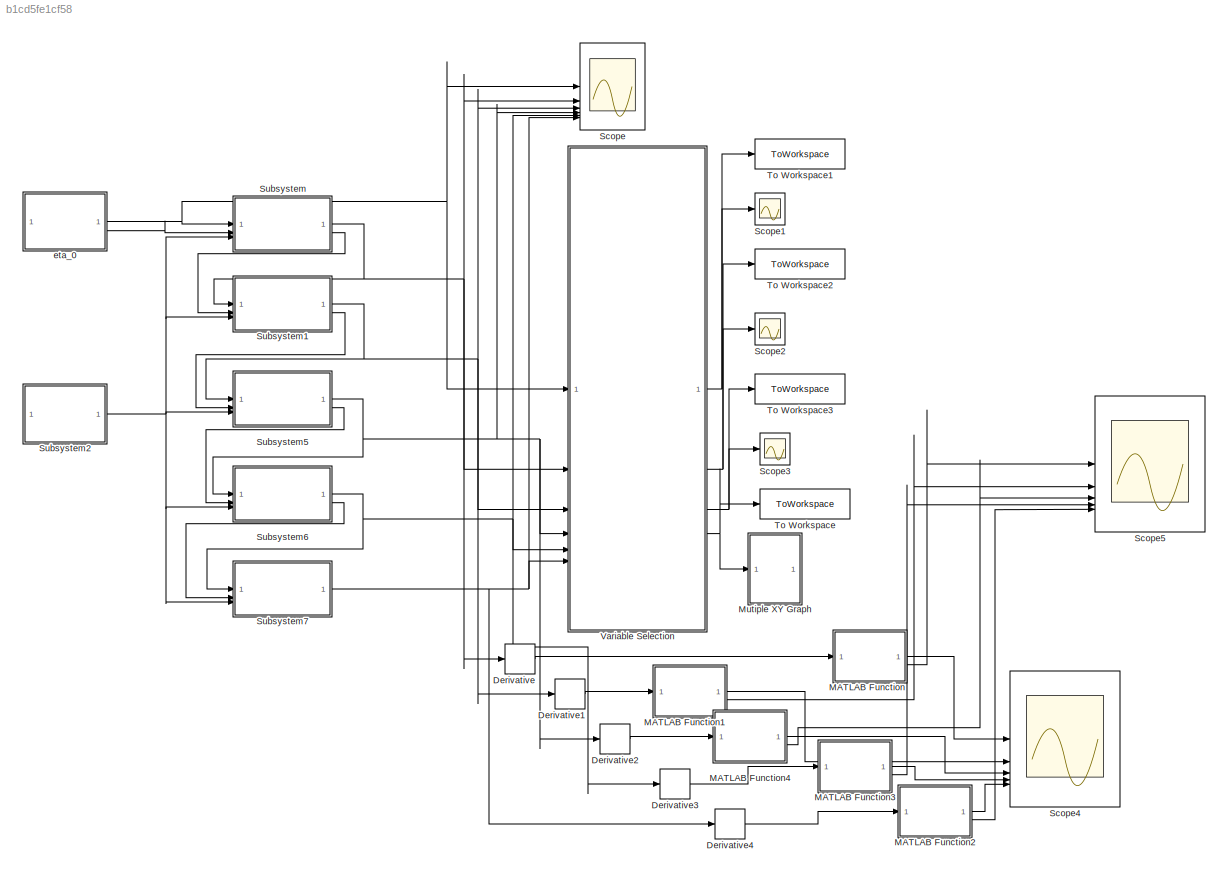
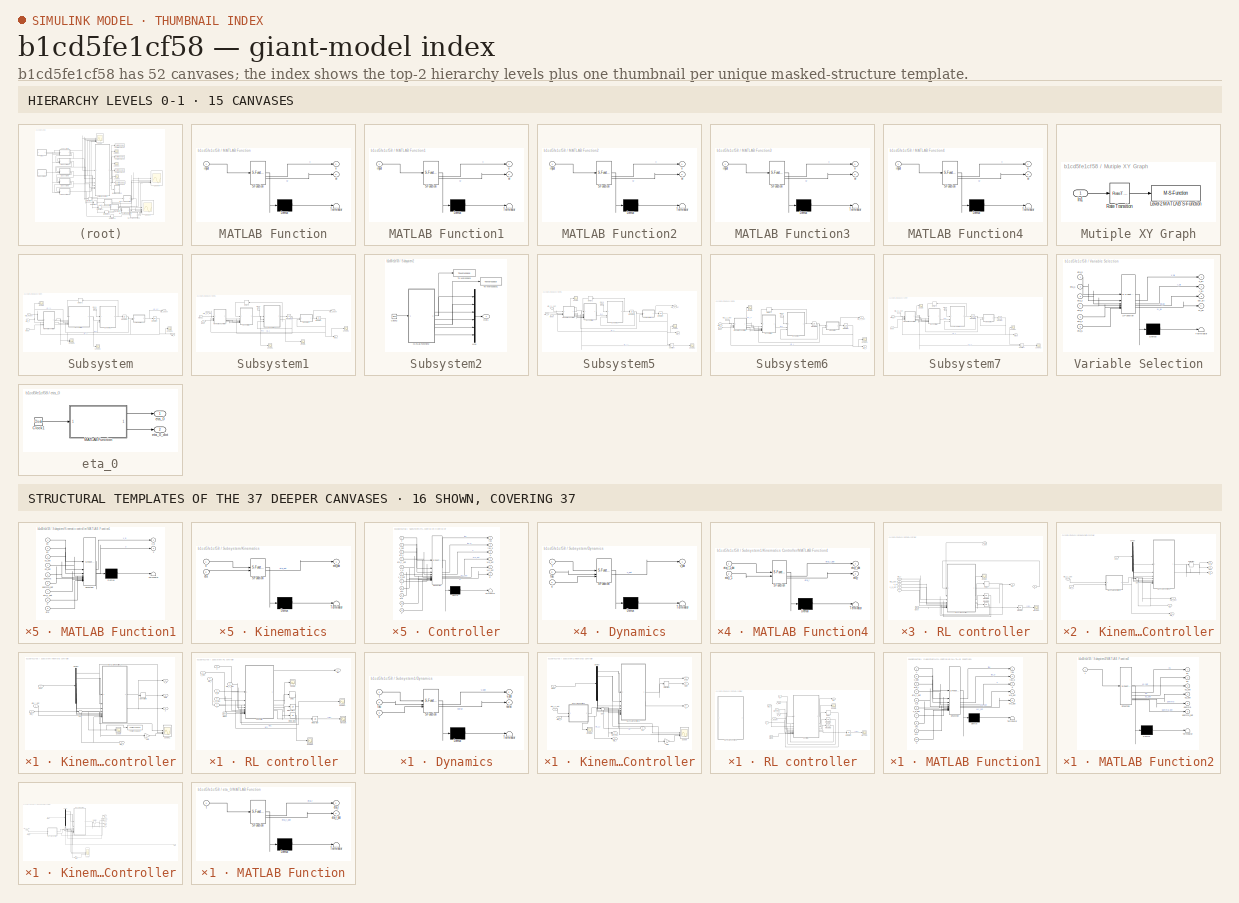
[diagram: thumbnail index - top-2 hierarchy levels (15 canvases) + 16 structural-template representatives of the remaining 37 canvases]
MODEL slx_b1cd5fe1cf58
KIND model
CONFIG AbsTol = auto
CONFIG EnableMultiTasking = off
CONFIG FixedStep = 0.001
CONFIG MaxStep = auto
CONFIG MinStep = auto
CONFIG RelTol = 1e-3
CONFIG SampleTimeConstraint = Unconstrained
CONFIG SolverName = FixedStepAuto
CONFIG StartTime = 0.0
CONFIG StopTime = 500
BLOCK [Derivative] Derivative
BLOCK [Derivative] Derivative1
BLOCK [Derivative] Derivative2
BLOCK [Derivative] Derivative3
BLOCK [Derivative] Derivative4
BLOCK [SubSystem] MATLAB Function
  ErrorFcn = Stateflow.Translate.translate
  LibrarySourceBlock = simulink/User-Defined\nFunctions/MATLAB Function
  PermitHierarchicalResolution = ExplicitOnly
  SFBlockType = MATLAB Function
  TreatAsAtomicUnit = on
BLOCK [Demux] MATLAB Function/ Demux 
  Outputs = 1
BLOCK [S-Function] MATLAB Function/ SFunction 
  EnableBusSupport = on
  FunctionName = sf_sfun
  PortCounts = [1 3]
  SFcnIsStateOwnerBlock = off
  SFunctionDeploymentMode = off
  Tag = Stateflow S-Function 4
BLOCK [Terminator] MATLAB Function/ Terminator 
BLOCK [Inport] MATLAB Function/input
BLOCK [Outport] MATLAB Function/v
BLOCK [Outport] MATLAB Function/w
  Port = 2
BLOCK [SubSystem] MATLAB Function1
  ErrorFcn = Stateflow.Translate.translate
  LibrarySourceBlock = simulink/User-Defined\nFunctions/MATLAB Function
  PermitHierarchicalResolution = ExplicitOnly
  SFBlockType = MATLAB Function
  TreatAsAtomicUnit = on
BLOCK [Demux] MATLAB Function1/ Demux 
  Outputs = 1
BLOCK [S-Function] MATLAB Function1/ SFunction 
  EnableBusSupport = on
  FunctionName = sf_sfun
  PortCounts = [1 3]
  SFcnIsStateOwnerBlock = off
  SFunctionDeploymentMode = off
  Tag = Stateflow S-Function 14
BLOCK [Terminator] MATLAB Function1/ Terminator 
BLOCK [Inport] MATLAB Function1/input
BLOCK [Outport] MATLAB Function1/v
BLOCK [Outport] MATLAB Function1/w
  Port = 2
BLOCK [SubSystem] MATLAB Function2
  ErrorFcn = Stateflow.Translate.translate
  LibrarySourceBlock = simulink/User-Defined\nFunctions/MATLAB Function
  PermitHierarchicalResolution = ExplicitOnly
  SFBlockType = MATLAB Function
  TreatAsAtomicUnit = on
BLOCK [Demux] MATLAB Function2/ Demux 
  Outputs = 1
BLOCK [S-Function] MATLAB Function2/ SFunction 
  EnableBusSupport = on
  FunctionName = sf_sfun
  PortCounts = [1 3]
  SFcnIsStateOwnerBlock = off
  SFunctionDeploymentMode = off
  Tag = Stateflow S-Function 15
BLOCK [Terminator] MATLAB Function2/ Terminator 
BLOCK [Inport] MATLAB Function2/input
BLOCK [Outport] MATLAB Function2/v
BLOCK [Outport] MATLAB Function2/w
  Port = 2
BLOCK [SubSystem] MATLAB Function3
  ErrorFcn = Stateflow.Translate.translate
  LibrarySourceBlock = simulink/User-Defined\nFunctions/MATLAB Function
  PermitHierarchicalResolution = ExplicitOnly
  SFBlockType = MATLAB Function
  TreatAsAtomicUnit = on
BLOCK [Demux] MATLAB Function3/ Demux 
  Outputs = 1
BLOCK [S-Function] MATLAB Function3/ SFunction 
  EnableBusSupport = on
  FunctionName = sf_sfun
  PortCounts = [1 3]
  SFcnIsStateOwnerBlock = off
  SFunctionDeploymentMode = off
  Tag = Stateflow S-Function 16
BLOCK [Terminator] MATLAB Function3/ Terminator 
BLOCK [Inport] MATLAB Function3/input
BLOCK [Outport] MATLAB Function3/v
BLOCK [Outport] MATLAB Function3/w
  Port = 2
BLOCK [SubSystem] MATLAB Function4
  ErrorFcn = Stateflow.Translate.translate
  LibrarySourceBlock = simulink/User-Defined\nFunctions/MATLAB Function
  PermitHierarchicalResolution = ExplicitOnly
  SFBlockType = MATLAB Function
  TreatAsAtomicUnit = on
BLOCK [Demux] MATLAB Function4/ Demux 
  Outputs = 1
BLOCK [S-Function] MATLAB Function4/ SFunction 
  EnableBusSupport = on
  FunctionName = sf_sfun
  PortCounts = [1 3]
  SFcnIsStateOwnerBlock = off
  SFunctionDeploymentMode = off
  Tag = Stateflow S-Function 17
BLOCK [Terminator] MATLAB Function4/ Terminator 
BLOCK [Inport] MATLAB Function4/input
BLOCK [Outport] MATLAB Function4/v
BLOCK [Outport] MATLAB Function4/w
  Port = 2
BLOCK [SubSystem] Mutiple XY Graph
BLOCK [Inport] Mutiple XY Graph/In1
BLOCK [M-S-Function] Mutiple XY Graph/Level-2 MATLAB S-Function
  FunctionName = multiple_xy_graph
  Parameters = number_of_trajectories,axis_limits
BLOCK [RateTransition] Mutiple XY Graph/Rate Transition
  OutPortSampleTime = sample_time
BLOCK [Scope] Scope
  Floating = off
  NumInputPorts = 6
  ScopeSpecificationString = Simulink.scopes.TimeScopeBlockCfg('CurrentConfiguration', extmgr.ConfigurationSet(extmgr.Configuration('Core','General UI',true,'FigureColor',[1 1 1]),extmgr.Configuration('Core','Source UI',true),extmgr.Configuration('Sources','WiredSimulink',true,'DataLoggingVariableName','ScopeData1'),extmgr.Configuration('Visuals','Time Domain',true,'SerializedDisplays',{struct('MinYLimReal','-45.69668','MaxYL...<+3867ch>
BLOCK [Scope] Scope1
  Floating = off
  NumInputPorts = 1
  ScopeSpecificationString = Simulink.scopes.TimeScopeBlockCfg('CurrentConfiguration', extmgr.ConfigurationSet(extmgr.Configuration('Core','General UI',true),extmgr.Configuration('Core','Source UI',true),extmgr.Configuration('Sources','WiredSimulink',true,'DataLoggingVariableName','ScopeData3'),extmgr.Configuration('Visuals','Time Domain',true,'SerializedDisplays',{struct('MinYLimReal','-42.13249','MaxYLimReal','82.46001','YL...<+1725ch>
BLOCK [Scope] Scope2
  Floating = off
  NumInputPorts = 1
  ScopeSpecificationString = Simulink.scopes.TimeScopeBlockCfg('CurrentConfiguration', extmgr.ConfigurationSet(extmgr.Configuration('Core','General UI',true),extmgr.Configuration('Core','Source UI',true),extmgr.Configuration('Sources','WiredSimulink',true,'DataLoggingVariableName','ScopeData6'),extmgr.Configuration('Visuals','Time Domain',true,'SerializedDisplays',{struct('MinYLimReal','-12.50001','MaxYLimReal','112.50009','Y...<+1565ch>
BLOCK [Scope] Scope3
  Floating = off
  NumInputPorts = 1
  ScopeSpecificationString = Simulink.scopes.TimeScopeBlockCfg('CurrentConfiguration', extmgr.ConfigurationSet(extmgr.Configuration('Core','General UI',true,'FigureColor',[1 1 1]),extmgr.Configuration('Core','Source UI',true),extmgr.Configuration('Sources','WiredSimulink',true,'DataLoggingVariableName','ScopeData7'),extmgr.Configuration('Visuals','Time Domain',true,'SerializedDisplays',{struct('MinYLimReal','-0.06017','MaxYLi...<+1888ch>
BLOCK [Scope] Scope4
  Floating = off
  NumInputPorts = 5
  ScopeSpecificationString = Simulink.scopes.TimeScopeBlockCfg('CurrentConfiguration', extmgr.ConfigurationSet(extmgr.Configuration('Core','General UI',true),extmgr.Configuration('Core','Source UI',true),extmgr.Configuration('Sources','WiredSimulink',true,'DataLoggingVariableName','ScopeData1'),extmgr.Configuration('Visuals','Time Domain',true,'SerializedDisplays',{struct('MinYLimReal','-1.08926','MaxYLimReal','9.80336','YLab...<+1600ch>
BLOCK [Scope] Scope5
  Floating = off
  NumInputPorts = 5
  ScopeSpecificationString = Simulink.scopes.TimeScopeBlockCfg('CurrentConfiguration', extmgr.ConfigurationSet(extmgr.Configuration('Core','General UI',true),extmgr.Configuration('Core','Source UI',true),extmgr.Configuration('Sources','WiredSimulink',true,'DataLoggingVariableName','ScopeData1'),extmgr.Configuration('Visuals','Time Domain',true,'SerializedDisplays',{struct('MinYLimReal','-0.40653','MaxYLimReal','0.33258','YLab...<+1490ch>
BLOCK [SubSystem] Subsystem
  ShowPortLabels = none
BLOCK [Clock] Subsystem/Clock
BLOCK [Delay] Subsystem/Delay1
  DelayLength = 1
  InitialCondition = [0;0;0]
  InputPortMap = u0
  NameLocation = top
  SampleTime = 0.001
BLOCK [SubSystem] Subsystem/Dynamics
  ErrorFcn = Stateflow.Translate.translate
  PermitHierarchicalResolution = ExplicitOnly
  SFBlockType = MATLAB Function
  TreatAsAtomicUnit = on
BLOCK [Demux] Subsystem/Dynamics/ Demux 
  Outputs = 1
BLOCK [S-Function] Subsystem/Dynamics/ SFunction 
  EnableBusSupport = on
  FunctionName = sf_sfun
  PortCounts = [3 2]
  SFcnIsStateOwnerBlock = off
  SFunctionDeploymentMode = off
  Tag = Stateflow S-Function 10
BLOCK [Terminator] Subsystem/Dynamics/ Terminator 
BLOCK [Inport] Subsystem/Dynamics/t
BLOCK [Inport] Subsystem/Dynamics/tau
  Port = 2
BLOCK [Inport] Subsystem/Dynamics/v
  Port = 3
BLOCK [Outport] Subsystem/Dynamics/v_dot
BLOCK [Inport] Subsystem/Input
  Port = 3
BLOCK [Integrator] Subsystem/Integrator
  InitialCondition = INT_1
BLOCK [Integrator] Subsystem/Integrator3
  InitialCondition = [0;0;0]
BLOCK [SubSystem] Subsystem/Kinematic controller
BLOCK [Demux] Subsystem/Kinematic controller/Demux
  Outputs = 6
BLOCK [Derivative] Subsystem/Kinematic controller/Derivative
BLOCK [Gain] Subsystem/Kinematic controller/Gain
  Gain = -1
BLOCK [Inport] Subsystem/Kinematic controller/Input
  Port = 4
BLOCK [SubSystem] Subsystem/Kinematic controller/MATLAB Function1
  ErrorFcn = Stateflow.Translate.translate
  PermitHierarchicalResolution = ExplicitOnly
  SFBlockType = MATLAB Function
  TreatAsAtomicUnit = on
BLOCK [Demux] Subsystem/Kinematic controller/MATLAB Function1/ Demux 
  Outputs = 1
BLOCK [S-Function] Subsystem/Kinematic controller/MATLAB Function1/ SFunction 
  EnableBusSupport = on
  FunctionName = sf_sfun
  PortCounts = [9 3]
  SFcnIsStateOwnerBlock = off
  SFunctionDeploymentMode = off
  Tag = Stateflow S-Function 1
BLOCK [Terminator] Subsystem/Kinematic controller/MATLAB Function1/ Terminator 
BLOCK [Inport] Subsystem/Kinematic controller/MATLAB Function1/e
  Port = 8
BLOCK [Inport] Subsystem/Kinematic controller/MATLAB Function1/e1
BLOCK [Inport] Subsystem/Kinematic controller/MATLAB Function1/e1_dot
  Port = 3
BLOCK [Inport] Subsystem/Kinematic controller/MATLAB Function1/e2
  Port = 2
BLOCK [Inport] Subsystem/Kinematic controller/MATLAB Function1/e2_dot
  Port = 4
BLOCK [Inport] Subsystem/Kinematic controller/MATLAB Function1/eta
  Port = 9
BLOCK [Inport] Subsystem/Kinematic controller/MATLAB Function1/eta_r_dot
  Port = 7
BLOCK [Inport] Subsystem/Kinematic controller/MATLAB Function1/gamma
  Port = 5
BLOCK [Inport] Subsystem/Kinematic controller/MATLAB Function1/gamma_dot
  Port = 6
BLOCK [Outport] Subsystem/Kinematic controller/MATLAB Function1/v_d
BLOCK [Outport] Subsystem/Kinematic controller/MATLAB Function1/z
  Port = 2
BLOCK [Outport] Subsystem/Kinematic controller/Out2
  Port = 2
BLOCK [Scope] Subsystem/Kinematic controller/Scope
  Floating = off
  NumInputPorts = 1
  ScopeSpecificationString = Simulink.scopes.TimeScopeBlockCfg('CurrentConfiguration', extmgr.ConfigurationSet(extmgr.Configuration('Core','General UI',true),extmgr.Configuration('Core','Source UI',true),extmgr.Configuration('Sources','WiredSimulink',true,'DataLoggingVariableName','ScopeData1'),extmgr.Configuration('Visuals','Time Domain',true,'SerializedDisplays',{struct('MinYLimReal','-0.08765','MaxYLimReal','0.56788','YLab...<+1380ch>
BLOCK [Scope] Subsystem/Kinematic controller/Scope1
  Floating = off
  NumInputPorts = 3
  ScopeSpecificationString = Simulink.scopes.TimeScopeBlockCfg('CurrentConfiguration', extmgr.ConfigurationSet(extmgr.Configuration('Core','General UI',true,'FigureColor',[1 1 1]),extmgr.Configuration('Core','Source UI',true),extmgr.Configuration('Sources','WiredSimulink',true,'DataLoggingVariableName','ScopeData2'),extmgr.Configuration('Visuals','Time Domain',true,'SerializedDisplays',{struct('MinYLimReal','-1.00345','MaxYLi...<+2462ch>
BLOCK [Sum] Subsystem/Kinematic controller/Sum
  Inputs = |-+
BLOCK [ToWorkspace] Subsystem/Kinematic controller/To Workspace
  FixptAsFi = on
  MaxDataPoints = inf
  SampleTime = -1
  Save2DSignal = 2-D array (concatenate along first dimension)
  VariableName = e
BLOCK [Inport] Subsystem/Kinematic controller/eta_1
  Port = 3
BLOCK [Inport] Subsystem/Kinematic controller/eta_r
  Port = 2
BLOCK [Inport] Subsystem/Kinematic controller/eta_r_dot
BLOCK [Outport] Subsystem/Kinematic controller/v_d
BLOCK [Outport] Subsystem/Kinematic controller/z
  Port = 3
BLOCK [SubSystem] Subsystem/Kinematics
  ErrorFcn = Stateflow.Translate.translate
  PermitHierarchicalResolution = ExplicitOnly
  SFBlockType = MATLAB Function
  TreatAsAtomicUnit = on
BLOCK [Demux] Subsystem/Kinematics/ Demux 
  Outputs = 1
BLOCK [S-Function] Subsystem/Kinematics/ SFunction 
  EnableBusSupport = on
  FunctionName = sf_sfun
  PortCounts = [2 2]
  SFcnIsStateOwnerBlock = off
  SFunctionDeploymentMode = off
  Tag = Stateflow S-Function 6
BLOCK [Terminator] Subsystem/Kinematics/ Terminator 
BLOCK [Inport] Subsystem/Kinematics/eta
  Port = 2
BLOCK [Outport] Subsystem/Kinematics/eta_dot
BLOCK [Inport] Subsystem/Kinematics/v
BLOCK [SubSystem] Subsystem/RL controller
BLOCK [Clock] Subsystem/RL controller/Clock
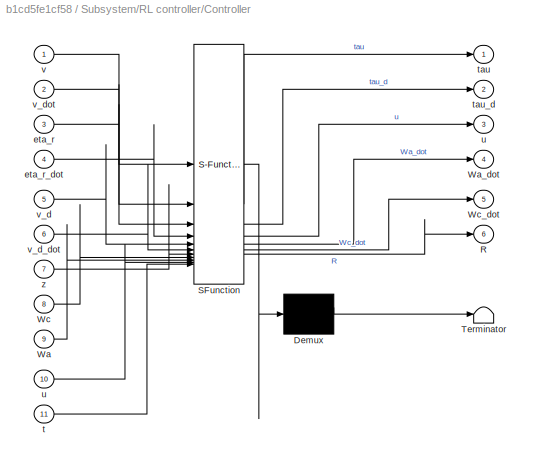
BLOCK [SubSystem] Subsystem/RL controller/Controller
  ErrorFcn = Stateflow.Translate.translate
  PermitHierarchicalResolution = ExplicitOnly
  SFBlockType = MATLAB Function
  TreatAsAtomicUnit = on
BLOCK [Demux] Subsystem/RL controller/Controller/ Demux 
  Outputs = 1
BLOCK [S-Function] Subsystem/RL controller/Controller/ SFunction 
  EnableBusSupport = on
  FunctionName = sf_sfun
  Parameters = RL
  PortCounts = [11 7]
  SFcnIsStateOwnerBlock = off
  SFunctionDeploymentMode = off
  Tag = Stateflow S-Function 7
BLOCK [Terminator] Subsystem/RL controller/Controller/ Terminator 
BLOCK [Outport] Subsystem/RL controller/Controller/R
  Port = 6
BLOCK [Inport] Subsystem/RL controller/Controller/Wa
  Port = 9
BLOCK [Outport] Subsystem/RL controller/Controller/Wa_dot
  Port = 4
BLOCK [Inport] Subsystem/RL controller/Controller/Wc
  Port = 8
BLOCK [Outport] Subsystem/RL controller/Controller/Wc_dot
  Port = 5
BLOCK [Inport] Subsystem/RL controller/Controller/eta_r
  Port = 3
BLOCK [Inport] Subsystem/RL controller/Controller/eta_r_dot
  Port = 4
BLOCK [Inport] Subsystem/RL controller/Controller/t
  Port = 11
BLOCK [Outport] Subsystem/RL controller/Controller/tau
BLOCK [Outport] Subsystem/RL controller/Controller/tau_d
  Port = 2
BLOCK [Outport] Subsystem/RL controller/Controller/u
  Port = 3
BLOCK [Inport] Subsystem/RL controller/Controller/u 
  Port = 10
BLOCK [Inport] Subsystem/RL controller/Controller/v
BLOCK [Inport] Subsystem/RL controller/Controller/v_d
  Port = 5
BLOCK [Inport] Subsystem/RL controller/Controller/v_d_dot
  Port = 6
BLOCK [Inport] Subsystem/RL controller/Controller/v_dot
  Port = 2
BLOCK [Inport] Subsystem/RL controller/Controller/z
  Port = 7
BLOCK [Delay] Subsystem/RL controller/Delay
  DelayLength = 1
  InitialCondition = [0;0;0]
  InputPortMap = u0
  SampleTime = 0.001
BLOCK [Integrator] Subsystem/RL controller/Integrator
BLOCK [Integrator] Subsystem/RL controller/Integrator1
  InitialCondition = zeros(15,1)
BLOCK [Integrator] Subsystem/RL controller/Integrator2
  InitialCondition = zeros(15,1)
BLOCK [Scope] Subsystem/RL controller/Scope
  Floating = off
  NumInputPorts = 1
  ScopeSpecificationString = Simulink.scopes.TimeScopeBlockCfg('CurrentConfiguration', extmgr.ConfigurationSet(extmgr.Configuration('Core','General UI',true),extmgr.Configuration('Core','Source UI',true),extmgr.Configuration('Sources','WiredSimulink',true,'DataLoggingVariableName','ScopeData1'),extmgr.Configuration('Visuals','Time Domain',true,'SerializedDisplays',{struct('MinYLimReal','-140043.56688','MaxYLimReal','140030.52...<+1623ch>
BLOCK [Scope] Subsystem/RL controller/Scope1
  Floating = off
  NumInputPorts = 1
  ScopeSpecificationString = Simulink.scopes.TimeScopeBlockCfg('CurrentConfiguration', extmgr.ConfigurationSet(extmgr.Configuration('Core','General UI',true),extmgr.Configuration('Core','Source UI',true),extmgr.Configuration('Sources','WiredSimulink',true,'DataLoggingVariableName','ScopeData5'),extmgr.Configuration('Visuals','Time Domain',true,'SerializedDisplays',{struct('MinYLimReal','-0.47274','MaxYLimReal','1.32994','YLab...<+1510ch>
BLOCK [Scope] Subsystem/RL controller/Scope2
  Floating = off
  NumInputPorts = 1
  ScopeSpecificationString = Simulink.scopes.TimeScopeBlockCfg('CurrentConfiguration', extmgr.ConfigurationSet(extmgr.Configuration('Core','General UI',true),extmgr.Configuration('Core','Source UI',true),extmgr.Configuration('Sources','WiredSimulink',true,'DataLoggingVariableName','ScopeData6'),extmgr.Configuration('Visuals','Time Domain',true,'SerializedDisplays',{struct('MinYLimReal','-0.63206','MaxYLimReal','1.06147','YLab...<+1603ch>
BLOCK [Scope] Subsystem/RL controller/WATCH J
  Floating = off
  NumInputPorts = 1
  ScopeSpecificationString = Simulink.scopes.TimeScopeBlockCfg('CurrentConfiguration', extmgr.ConfigurationSet(extmgr.Configuration('Core','General UI',true),extmgr.Configuration('Core','Source UI',true),extmgr.Configuration('Sources','WiredSimulink',true,'DataLoggingVariableName','Jsig1','DataLogging',true,'DataLoggingSaveFormat','StructureWithTime'),extmgr.Configuration('Visuals','Time Domain',true,'SerializedDisplays',{str...<+1520ch>
BLOCK [Inport] Subsystem/RL controller/eta_r
  Port = 4
BLOCK [Inport] Subsystem/RL controller/eta_r_dot
  Port = 2
BLOCK [Outport] Subsystem/RL controller/tau
BLOCK [Inport] Subsystem/RL controller/v
  Port = 6
BLOCK [Inport] Subsystem/RL controller/v_d
  Port = 3
BLOCK [Inport] Subsystem/RL controller/v_d_dot
  Port = 5
BLOCK [Inport] Subsystem/RL controller/v_dot
  NameLocation = top
BLOCK [Inport] Subsystem/RL controller/z
  Port = 7
BLOCK [Scope] Subsystem/Scope
  Floating = off
  NumInputPorts = 1
  ScopeSpecificationString = Simulink.scopes.TimeScopeBlockCfg('CurrentConfiguration', extmgr.ConfigurationSet(extmgr.Configuration('Core','General UI',true),extmgr.Configuration('Core','Source UI',true),extmgr.Configuration('Sources','WiredSimulink',true,'DataLoggingVariableName','eta_r_1','DataLogging',true,'DataLoggingSaveFormat','StructureWithTime'),extmgr.Configuration('Visuals','Time Domain',true,'SerializedDisplays',{s...<+1462ch>
BLOCK [Scope] Subsystem/Scope1
  Floating = off
  NumInputPorts = 1
  ScopeSpecificationString = Simulink.scopes.TimeScopeBlockCfg('CurrentConfiguration', extmgr.ConfigurationSet(extmgr.Configuration('Core','General UI',true),extmgr.Configuration('Core','Source UI',true),extmgr.Configuration('Sources','WiredSimulink',true,'DataLoggingVariableName','eta_1','DataLogging',true,'DataLoggingSaveFormat','StructureWithTime'),extmgr.Configuration('Visuals','Time Domain',true,'SerializedDisplays',{str...<+1454ch>
BLOCK [Scope] Subsystem/Scope2
  Floating = off
  NumInputPorts = 1
  ScopeSpecificationString = Simulink.scopes.TimeScopeBlockCfg('CurrentConfiguration', extmgr.ConfigurationSet(extmgr.Configuration('Core','General UI',true),extmgr.Configuration('Core','Source UI',true),extmgr.Configuration('Sources','WiredSimulink',true,'DataLoggingVariableName','ScopeData3'),extmgr.Configuration('Visuals','Time Domain',true,'SerializedDisplays',{struct('MinYLimReal','-35.32558','MaxYLimReal','42.09773','YL...<+1462ch>
BLOCK [Scope] Subsystem/Scope3
  Floating = off
  NumInputPorts = 2
  ScopeSpecificationString = Simulink.scopes.TimeScopeBlockCfg('CurrentConfiguration', extmgr.ConfigurationSet(extmgr.Configuration('Core','General UI',true),extmgr.Configuration('Core','Source UI',true),extmgr.Configuration('Sources','WiredSimulink',true,'DataLoggingVariableName','ScopeData4'),extmgr.Configuration('Visuals','Time Domain',true,'SerializedDisplays',{struct('MinYLimReal','-0.87504','MaxYLimReal','1.18796','YLab...<+1524ch>
BLOCK [Inport] Subsystem/eta_0
BLOCK [Inport] Subsystem/eta_0_dot
  Port = 2
BLOCK [Outport] Subsystem/eta_1
BLOCK [Outport] Subsystem/eta_1_dot
  Port = 2
BLOCK [SubSystem] Subsystem1
  ShowPortLabels = none
BLOCK [Clock] Subsystem1/Clock
BLOCK [Delay] Subsystem1/Delay1
  DelayLength = 1
  InitialCondition = [0;0;0]
  InputPortMap = u0
  NameLocation = top
  SampleTime = 0.001
BLOCK [SubSystem] Subsystem1/Dynamics
  ErrorFcn = Stateflow.Translate.translate
  PermitHierarchicalResolution = ExplicitOnly
  SFBlockType = MATLAB Function
  TreatAsAtomicUnit = on
BLOCK [Demux] Subsystem1/Dynamics/ Demux 
  Outputs = 1
BLOCK [S-Function] Subsystem1/Dynamics/ SFunction 
  EnableBusSupport = on
  FunctionName = sf_sfun
  PortCounts = [3 3]
  SFcnIsStateOwnerBlock = off
  SFunctionDeploymentMode = off
  Tag = Stateflow S-Function 8
BLOCK [Terminator] Subsystem1/Dynamics/ Terminator 
BLOCK [Outport] Subsystem1/Dynamics/noise
  Port = 2
BLOCK [Inport] Subsystem1/Dynamics/t
BLOCK [Inport] Subsystem1/Dynamics/tau
  Port = 2
BLOCK [Inport] Subsystem1/Dynamics/v
  Port = 3
BLOCK [Outport] Subsystem1/Dynamics/v_dot
BLOCK [Inport] Subsystem1/Input
  Port = 3
BLOCK [Integrator] Subsystem1/Integrator
  InitialCondition = INT_2
BLOCK [Integrator] Subsystem1/Integrator3
  InitialCondition = [0;0;0]
BLOCK [SubSystem] Subsystem1/Kinematics
  ErrorFcn = Stateflow.Translate.translate
  PermitHierarchicalResolution = ExplicitOnly
  SFBlockType = MATLAB Function
  TreatAsAtomicUnit = on
BLOCK [SubSystem] Subsystem1/Kinematics Controller
BLOCK [Demux] Subsystem1/Kinematics Controller/Demux
  Outputs = 6
BLOCK [Derivative] Subsystem1/Kinematics Controller/Derivative
BLOCK [Gain] Subsystem1/Kinematics Controller/Gain
  Gain = -1
BLOCK [Inport] Subsystem1/Kinematics Controller/In3
  Port = 3
BLOCK [Inport] Subsystem1/Kinematics Controller/Input
  Port = 4
BLOCK [SubSystem] Subsystem1/Kinematics Controller/MATLAB Function1
  ErrorFcn = Stateflow.Translate.translate
  PermitHierarchicalResolution = ExplicitOnly
  SFBlockType = MATLAB Function
  TreatAsAtomicUnit = on
BLOCK [Demux] Subsystem1/Kinematics Controller/MATLAB Function1/ Demux 
  Outputs = 1
BLOCK [S-Function] Subsystem1/Kinematics Controller/MATLAB Function1/ SFunction 
  EnableBusSupport = on
  FunctionName = sf_sfun
  PortCounts = [9 3]
  SFcnIsStateOwnerBlock = off
  SFunctionDeploymentMode = off
  Tag = Stateflow S-Function 5
BLOCK [Terminator] Subsystem1/Kinematics Controller/MATLAB Function1/ Terminator 
BLOCK [Inport] Subsystem1/Kinematics Controller/MATLAB Function1/e
  Port = 8
BLOCK [Inport] Subsystem1/Kinematics Controller/MATLAB Function1/e1
BLOCK [Inport] Subsystem1/Kinematics Controller/MATLAB Function1/e1_dot
  Port = 3
BLOCK [Inport] Subsystem1/Kinematics Controller/MATLAB Function1/e2
  Port = 2
BLOCK [Inport] Subsystem1/Kinematics Controller/MATLAB Function1/e2_dot
  Port = 4
BLOCK [Inport] Subsystem1/Kinematics Controller/MATLAB Function1/eta
  Port = 9
BLOCK [Inport] Subsystem1/Kinematics Controller/MATLAB Function1/eta_r_dot
  Port = 7
BLOCK [Inport] Subsystem1/Kinematics Controller/MATLAB Function1/gamma
  Port = 5
BLOCK [Inport] Subsystem1/Kinematics Controller/MATLAB Function1/gamma_dot
  Port = 6
BLOCK [Outport] Subsystem1/Kinematics Controller/MATLAB Function1/v_d
BLOCK [Outport] Subsystem1/Kinematics Controller/MATLAB Function1/z
  Port = 2
BLOCK [SubSystem] Subsystem1/Kinematics Controller/MATLAB Function4
  ErrorFcn = Stateflow.Translate.translate
  PermitHierarchicalResolution = ExplicitOnly
  SFBlockType = MATLAB Function
  TreatAsAtomicUnit = on
BLOCK [Demux] Subsystem1/Kinematics Controller/MATLAB Function4/ Demux 
  Outputs = 1
BLOCK [S-Function] Subsystem1/Kinematics Controller/MATLAB Function4/ SFunction 
  EnableBusSupport = on
  FunctionName = sf_sfun
  PortCounts = [2 3]
  SFcnIsStateOwnerBlock = off
  SFunctionDeploymentMode = off
  Tag = Stateflow S-Function 12
BLOCK [Terminator] Subsystem1/Kinematics Controller/MATLAB Function4/ Terminator 
BLOCK [Inport] Subsystem1/Kinematics Controller/MATLAB Function4/eta_i_1
  Port = 2
BLOCK [Inport] Subsystem1/Kinematics Controller/MATLAB Function4/eta_i_1_dot
BLOCK [Outport] Subsystem1/Kinematics Controller/MATLAB Function4/eta_r
  Port = 2
BLOCK [Outport] Subsystem1/Kinematics Controller/MATLAB Function4/eta_r_dot
BLOCK [Outport] Subsystem1/Kinematics Controller/Out4
  Port = 4
BLOCK [Scope] Subsystem1/Kinematics Controller/Scope
  Floating = off
  NumInputPorts = 3
  ScopeSpecificationString = Simulink.scopes.TimeScopeBlockCfg('CurrentConfiguration', extmgr.ConfigurationSet(extmgr.Configuration('Core','General UI',true,'FigureColor',[1 1 1]),extmgr.Configuration('Core','Source UI',true),extmgr.Configuration('Sources','WiredSimulink',true,'DataLoggingVariableName','ScopeData3'),extmgr.Configuration('Visuals','Time Domain',true,'SerializedDisplays',{struct('MinYLimReal','-1.00345','MaxYLi...<+2461ch>
BLOCK [Scope] Subsystem1/Kinematics Controller/Scope1
  Floating = off
  NumInputPorts = 1
  ScopeSpecificationString = Simulink.scopes.TimeScopeBlockCfg('CurrentConfiguration', extmgr.ConfigurationSet(extmgr.Configuration('Core','General UI',true),extmgr.Configuration('Core','Source UI',true),extmgr.Configuration('Sources','WiredSimulink',true,'DataLoggingVariableName','eta_r_2','DataLogging',true,'DataLoggingSaveFormat','StructureWithTime'),extmgr.Configuration('Visuals','Time Domain',true,'SerializedDisplays',{s...<+1462ch>
BLOCK [Sum] Subsystem1/Kinematics Controller/Sum
  Inputs = |-+
BLOCK [Inport] Subsystem1/Kinematics Controller/eta_i_1
  Port = 2
BLOCK [Inport] Subsystem1/Kinematics Controller/eta_i_1_dot
BLOCK [Outport] Subsystem1/Kinematics Controller/eta_r
BLOCK [Outport] Subsystem1/Kinematics Controller/eta_r_dot
  Port = 2
BLOCK [Outport] Subsystem1/Kinematics Controller/v_d
  Port = 3
BLOCK [Outport] Subsystem1/Kinematics Controller/z
  Port = 5
BLOCK [Demux] Subsystem1/Kinematics/ Demux 
  Outputs = 1
BLOCK [S-Function] Subsystem1/Kinematics/ SFunction 
  EnableBusSupport = on
  FunctionName = sf_sfun
  PortCounts = [2 2]
  SFcnIsStateOwnerBlock = off
  SFunctionDeploymentMode = off
  Tag = Stateflow S-Function 11
BLOCK [Terminator] Subsystem1/Kinematics/ Terminator 
BLOCK [Inport] Subsystem1/Kinematics/eta
  Port = 2
BLOCK [Outport] Subsystem1/Kinematics/eta_dot
BLOCK [Inport] Subsystem1/Kinematics/v
BLOCK [SubSystem] Subsystem1/RL controller
BLOCK [Clock] Subsystem1/RL controller/Clock
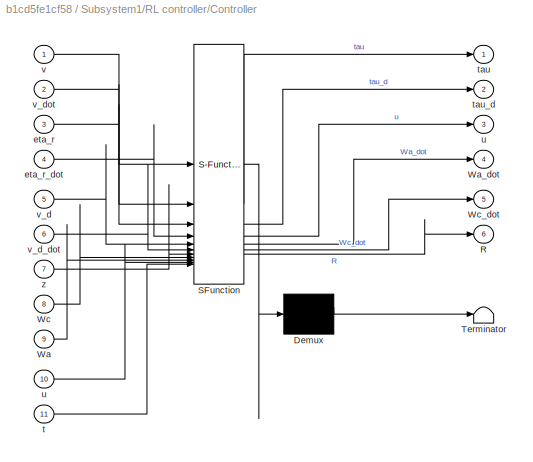
BLOCK [SubSystem] Subsystem1/RL controller/Controller
  ErrorFcn = Stateflow.Translate.translate
  PermitHierarchicalResolution = ExplicitOnly
  SFBlockType = MATLAB Function
  TreatAsAtomicUnit = on
BLOCK [Demux] Subsystem1/RL controller/Controller/ Demux 
  Outputs = 1
BLOCK [S-Function] Subsystem1/RL controller/Controller/ SFunction 
  EnableBusSupport = on
  FunctionName = sf_sfun
  Parameters = RL
  PortCounts = [11 7]
  SFcnIsStateOwnerBlock = off
  SFunctionDeploymentMode = off
  Tag = Stateflow S-Function 9
BLOCK [Terminator] Subsystem1/RL controller/Controller/ Terminator 
BLOCK [Outport] Subsystem1/RL controller/Controller/R
  Port = 6
BLOCK [Inport] Subsystem1/RL controller/Controller/Wa
  Port = 9
BLOCK [Outport] Subsystem1/RL controller/Controller/Wa_dot
  Port = 4
BLOCK [Inport] Subsystem1/RL controller/Controller/Wc
  Port = 8
BLOCK [Outport] Subsystem1/RL controller/Controller/Wc_dot
  Port = 5
BLOCK [Inport] Subsystem1/RL controller/Controller/eta_r
  Port = 3
BLOCK [Inport] Subsystem1/RL controller/Controller/eta_r_dot
  Port = 4
BLOCK [Inport] Subsystem1/RL controller/Controller/t
  Port = 11
BLOCK [Outport] Subsystem1/RL controller/Controller/tau
BLOCK [Outport] Subsystem1/RL controller/Controller/tau_d
  Port = 2
BLOCK [Outport] Subsystem1/RL controller/Controller/u
  Port = 3
BLOCK [Inport] Subsystem1/RL controller/Controller/u 
  Port = 10
BLOCK [Inport] Subsystem1/RL controller/Controller/v
BLOCK [Inport] Subsystem1/RL controller/Controller/v_d
  Port = 5
BLOCK [Inport] Subsystem1/RL controller/Controller/v_d_dot
  Port = 6
BLOCK [Inport] Subsystem1/RL controller/Controller/v_dot
  Port = 2
BLOCK [Inport] Subsystem1/RL controller/Controller/z
  Port = 7
BLOCK [Delay] Subsystem1/RL controller/Delay
  DelayLength = 1
  InitialCondition = [0;0;0]
  InputPortMap = u0
  SampleTime = 0.001
BLOCK [Integrator] Subsystem1/RL controller/Integrator
BLOCK [Integrator] Subsystem1/RL controller/Integrator1
  InitialCondition = zeros(15,1)
BLOCK [Integrator] Subsystem1/RL controller/Integrator2
  InitialCondition = zeros(15,1)
BLOCK [SubSystem] Subsystem1/RL controller/MATLAB Function1
  Commented = on
  ErrorFcn = Stateflow.Translate.translate
  PermitHierarchicalResolution = ExplicitOnly
  SFBlockType = MATLAB Function
  TreatAsAtomicUnit = on
BLOCK [Demux] Subsystem1/RL controller/MATLAB Function1/ Demux 
  Outputs = 1
BLOCK [S-Function] Subsystem1/RL controller/MATLAB Function1/ SFunction 
  EnableBusSupport = on
  FunctionName = sf_sfun
  PortCounts = [10 6]
  SFcnIsStateOwnerBlock = off
  SFunctionDeploymentMode = off
  Tag = Stateflow S-Function 13
BLOCK [Terminator] Subsystem1/RL controller/MATLAB Function1/ Terminator 
BLOCK [Inport] Subsystem1/RL controller/MATLAB Function1/Wa
  Port = 9
BLOCK [Outport] Subsystem1/RL controller/MATLAB Function1/Wa_dot
  Port = 4
BLOCK [Inport] Subsystem1/RL controller/MATLAB Function1/Wc
  Port = 8
BLOCK [Outport] Subsystem1/RL controller/MATLAB Function1/Wc_dot
  Port = 5
BLOCK [Inport] Subsystem1/RL controller/MATLAB Function1/eta_r
  Port = 3
BLOCK [Inport] Subsystem1/RL controller/MATLAB Function1/eta_r_dot
  Port = 4
BLOCK [Outport] Subsystem1/RL controller/MATLAB Function1/tau
BLOCK [Outport] Subsystem1/RL controller/MATLAB Function1/tau_d
  Port = 2
BLOCK [Outport] Subsystem1/RL controller/MATLAB Function1/u
  Port = 3
BLOCK [Inport] Subsystem1/RL controller/MATLAB Function1/u 
  Port = 10
BLOCK [Inport] Subsystem1/RL controller/MATLAB Function1/v
BLOCK [Inport] Subsystem1/RL controller/MATLAB Function1/v_d
  Port = 5
BLOCK [Inport] Subsystem1/RL controller/MATLAB Function1/v_d_dot
  Port = 6
BLOCK [Inport] Subsystem1/RL controller/MATLAB Function1/v_dot
  Port = 2
BLOCK [Inport] Subsystem1/RL controller/MATLAB Function1/z
  Port = 7
BLOCK [Scope] Subsystem1/RL controller/Scope
  Floating = off
  NumInputPorts = 1
  ScopeSpecificationString = Simulink.scopes.TimeScopeBlockCfg('CurrentConfiguration', extmgr.ConfigurationSet(extmgr.Configuration('Core','General UI',true),extmgr.Configuration('Core','Source UI',true),extmgr.Configuration('Sources','WiredSimulink',true,'DataLoggingVariableName','ScopeData1'),extmgr.Configuration('Visuals','Time Domain',true,'SerializedDisplays',{struct('MinYLimReal','-140043.56688','MaxYLimReal','140030.52...<+1609ch>  <repeated x4 — deduplicated; at blocks: Scope>
BLOCK [Scope] Subsystem1/RL controller/WATCH J
  Floating = off
  NumInputPorts = 1
  ScopeSpecificationString = Simulink.scopes.TimeScopeBlockCfg('CurrentConfiguration', extmgr.ConfigurationSet(extmgr.Configuration('Core','General UI',true),extmgr.Configuration('Core','Source UI',true),extmgr.Configuration('Sources','WiredSimulink',true,'DataLoggingVariableName','Jsig2','DataLogging',true,'DataLoggingSaveFormat','StructureWithTime'),extmgr.Configuration('Visuals','Time Domain',true,'SerializedDisplays',{str...<+1472ch>
BLOCK [Inport] Subsystem1/RL controller/eta_r
  Port = 2
BLOCK [Inport] Subsystem1/RL controller/eta_r_dot
  Port = 3
BLOCK [Outport] Subsystem1/RL controller/tau
BLOCK [Inport] Subsystem1/RL controller/v
  Port = 5
BLOCK [Inport] Subsystem1/RL controller/v_d
  Port = 4
BLOCK [Inport] Subsystem1/RL controller/v_d_dot
  Port = 6
BLOCK [Inport] Subsystem1/RL controller/v_dot
  NameLocation = top
BLOCK [Inport] Subsystem1/RL controller/z
  Port = 7
BLOCK [Scope] Subsystem1/Scope
  Floating = off
  NumInputPorts = 1
  ScopeSpecificationString = Simulink.scopes.TimeScopeBlockCfg('CurrentConfiguration', extmgr.ConfigurationSet(extmgr.Configuration('Core','General UI',true),extmgr.Configuration('Core','Source UI',true),extmgr.Configuration('Sources','WiredSimulink',true,'DataLoggingVariableName','ScopeData4'),extmgr.Configuration('Visuals','Time Domain',true,'SerializedDisplays',{struct('MinYLimReal','-184.00744','MaxYLimReal','163.66717','...<+1566ch>
BLOCK [Scope] Subsystem1/Scope1
  Floating = off
  NumInputPorts = 1
  ScopeSpecificationString = Simulink.scopes.TimeScopeBlockCfg('CurrentConfiguration', extmgr.ConfigurationSet(extmgr.Configuration('Core','General UI',true,'FigureColor',[1 1 1]),extmgr.Configuration('Core','Source UI',true),extmgr.Configuration('Sources','WiredSimulink',true,'DataLoggingVariableName','ScopeData5'),extmgr.Configuration('Visuals','Time Domain',true,'SerializedDisplays',{struct('MinYLimReal','-6.74591','MaxYLi...<+1915ch>
BLOCK [Scope] Subsystem1/Scope2
  Floating = off
  NumInputPorts = 1
  ScopeSpecificationString = Simulink.scopes.TimeScopeBlockCfg('CurrentConfiguration', extmgr.ConfigurationSet(extmgr.Configuration('Core','General UI',true),extmgr.Configuration('Core','Source UI',true),extmgr.Configuration('Sources','WiredSimulink',true,'DataLoggingVariableName','eta_2','DataLogging',true,'DataLoggingSaveFormat','StructureWithTime'),extmgr.Configuration('Visuals','Time Domain',true,'SerializedDisplays',{str...<+1454ch>
BLOCK [Outport] Subsystem1/eta_2
BLOCK [Outport] Subsystem1/eta_2_dot
  Port = 2
BLOCK [Inport] Subsystem1/eta_i_1
BLOCK [Inport] Subsystem1/eta_i_1_dot
  Port = 2
BLOCK [SubSystem] Subsystem2
BLOCK [Clock] Subsystem2/Clock2
BLOCK [SubSystem] Subsystem2/MATLAB Function2
  ErrorFcn = Stateflow.Translate.translate
  PermitHierarchicalResolution = ExplicitOnly
  SFBlockType = MATLAB Function
  TreatAsAtomicUnit = on
BLOCK [Demux] Subsystem2/MATLAB Function2/ Demux 
  Outputs = 1
BLOCK [S-Function] Subsystem2/MATLAB Function2/ SFunction 
  EnableBusSupport = on
  FunctionName = sf_sfun
  PortCounts = [1 7]
  SFcnIsStateOwnerBlock = off
  SFunctionDeploymentMode = off
  Tag = Stateflow S-Function 3
BLOCK [Terminator] Subsystem2/MATLAB Function2/ Terminator 
BLOCK [Outport] Subsystem2/MATLAB Function2/e1
BLOCK [Outport] Subsystem2/MATLAB Function2/e1_dot
  Port = 3
BLOCK [Outport] Subsystem2/MATLAB Function2/e2
  Port = 2
BLOCK [Outport] Subsystem2/MATLAB Function2/e2_dot
  Port = 4
BLOCK [Outport] Subsystem2/MATLAB Function2/gamma
  Port = 5
BLOCK [Outport] Subsystem2/MATLAB Function2/gamma_dot
  Port = 6
BLOCK [Inport] Subsystem2/MATLAB Function2/t
BLOCK [Mux] Subsystem2/Mux
  DisplayOption = bar
  Inputs = 6
BLOCK [Outport] Subsystem2/Out1
BLOCK [ToWorkspace] Subsystem2/To Workspace
  FixptAsFi = on
  MaxDataPoints = inf
  SampleTime = -1
  Save2DSignal = 2-D array (concatenate along first dimension)
  VariableName = e1
BLOCK [ToWorkspace] Subsystem2/To Workspace1
  FixptAsFi = on
  MaxDataPoints = inf
  SampleTime = -1
  Save2DSignal = 2-D array (concatenate along first dimension)
  VariableName = e2
BLOCK [SubSystem] Subsystem5
  ShowPortLabels = none
BLOCK [Clock] Subsystem5/Clock
BLOCK [Delay] Subsystem5/Delay1
  DelayLength = 1
  InitialCondition = [0;0;0]
  InputPortMap = u0
  NameLocation = top
  SampleTime = 0.001
BLOCK [SubSystem] Subsystem5/Dynamics
  ErrorFcn = Stateflow.Translate.translate
  PermitHierarchicalResolution = ExplicitOnly
  SFBlockType = MATLAB Function
  TreatAsAtomicUnit = on
BLOCK [Demux] Subsystem5/Dynamics/ Demux 
  Outputs = 1
BLOCK [S-Function] Subsystem5/Dynamics/ SFunction 
  EnableBusSupport = on
  FunctionName = sf_sfun
  PortCounts = [3 2]
  SFcnIsStateOwnerBlock = off
  SFunctionDeploymentMode = off
  Tag = Stateflow S-Function 21
BLOCK [Terminator] Subsystem5/Dynamics/ Terminator 
BLOCK [Inport] Subsystem5/Dynamics/t
BLOCK [Inport] Subsystem5/Dynamics/tau
  Port = 2
BLOCK [Inport] Subsystem5/Dynamics/v
  Port = 3
BLOCK [Outport] Subsystem5/Dynamics/v_dot
BLOCK [Inport] Subsystem5/Input
  Port = 3
BLOCK [Integrator] Subsystem5/Integrator
  InitialCondition = INT_3
BLOCK [Integrator] Subsystem5/Integrator3
  InitialCondition = [0;0;0]
BLOCK [SubSystem] Subsystem5/Kinematics
  ErrorFcn = Stateflow.Translate.translate
  PermitHierarchicalResolution = ExplicitOnly
  SFBlockType = MATLAB Function
  TreatAsAtomicUnit = on
BLOCK [SubSystem] Subsystem5/Kinematics Controller
BLOCK [Demux] Subsystem5/Kinematics Controller/Demux
  Outputs = 6
BLOCK [Derivative] Subsystem5/Kinematics Controller/Derivative
BLOCK [Inport] Subsystem5/Kinematics Controller/In3
  Port = 3
BLOCK [Inport] Subsystem5/Kinematics Controller/Input
  Port = 4
BLOCK [SubSystem] Subsystem5/Kinematics Controller/MATLAB Function1
  ErrorFcn = Stateflow.Translate.translate
  PermitHierarchicalResolution = ExplicitOnly
  SFBlockType = MATLAB Function
  TreatAsAtomicUnit = on
BLOCK [Demux] Subsystem5/Kinematics Controller/MATLAB Function1/ Demux 
  Outputs = 1
BLOCK [S-Function] Subsystem5/Kinematics Controller/MATLAB Function1/ SFunction 
  EnableBusSupport = on
  FunctionName = sf_sfun
  PortCounts = [9 3]
  SFcnIsStateOwnerBlock = off
  SFunctionDeploymentMode = off
  Tag = Stateflow S-Function 34
BLOCK [Terminator] Subsystem5/Kinematics Controller/MATLAB Function1/ Terminator 
BLOCK [Inport] Subsystem5/Kinematics Controller/MATLAB Function1/e
  Port = 8
BLOCK [Inport] Subsystem5/Kinematics Controller/MATLAB Function1/e1
BLOCK [Inport] Subsystem5/Kinematics Controller/MATLAB Function1/e1_dot
  Port = 3
BLOCK [Inport] Subsystem5/Kinematics Controller/MATLAB Function1/e2
  Port = 2
BLOCK [Inport] Subsystem5/Kinematics Controller/MATLAB Function1/e2_dot
  Port = 4
BLOCK [Inport] Subsystem5/Kinematics Controller/MATLAB Function1/eta
  Port = 9
BLOCK [Inport] Subsystem5/Kinematics Controller/MATLAB Function1/eta_r_dot
  Port = 7
BLOCK [Inport] Subsystem5/Kinematics Controller/MATLAB Function1/gamma
  Port = 5
BLOCK [Inport] Subsystem5/Kinematics Controller/MATLAB Function1/gamma_dot
  Port = 6
BLOCK [Outport] Subsystem5/Kinematics Controller/MATLAB Function1/v_d
BLOCK [Outport] Subsystem5/Kinematics Controller/MATLAB Function1/z
  Port = 2
BLOCK [SubSystem] Subsystem5/Kinematics Controller/MATLAB Function4
  ErrorFcn = Stateflow.Translate.translate
  PermitHierarchicalResolution = ExplicitOnly
  SFBlockType = MATLAB Function
  TreatAsAtomicUnit = on
BLOCK [Demux] Subsystem5/Kinematics Controller/MATLAB Function4/ Demux 
  Outputs = 1
BLOCK [S-Function] Subsystem5/Kinematics Controller/MATLAB Function4/ SFunction 
  EnableBusSupport = on
  FunctionName = sf_sfun
  PortCounts = [2 3]
  SFcnIsStateOwnerBlock = off
  SFunctionDeploymentMode = off
  Tag = Stateflow S-Function 36
BLOCK [Terminator] Subsystem5/Kinematics Controller/MATLAB Function4/ Terminator 
BLOCK [Inport] Subsystem5/Kinematics Controller/MATLAB Function4/eta_i_1
  Port = 2
BLOCK [Inport] Subsystem5/Kinematics Controller/MATLAB Function4/eta_i_1_dot
BLOCK [Outport] Subsystem5/Kinematics Controller/MATLAB Function4/eta_r
  Port = 2
BLOCK [Outport] Subsystem5/Kinematics Controller/MATLAB Function4/eta_r_dot
BLOCK [Outport] Subsystem5/Kinematics Controller/Out4
  Port = 4
BLOCK [Sum] Subsystem5/Kinematics Controller/Sum
  Inputs = |-+
BLOCK [Inport] Subsystem5/Kinematics Controller/eta_i_1
  Port = 2
BLOCK [Inport] Subsystem5/Kinematics Controller/eta_i_1_dot
BLOCK [Outport] Subsystem5/Kinematics Controller/eta_r
BLOCK [Outport] Subsystem5/Kinematics Controller/eta_r_dot
  Port = 2
BLOCK [Outport] Subsystem5/Kinematics Controller/v_d
  Port = 3
BLOCK [Outport] Subsystem5/Kinematics Controller/z
  Port = 5
BLOCK [Demux] Subsystem5/Kinematics/ Demux 
  Outputs = 1
BLOCK [S-Function] Subsystem5/Kinematics/ SFunction 
  EnableBusSupport = on
  FunctionName = sf_sfun
  PortCounts = [2 2]
  SFcnIsStateOwnerBlock = off
  SFunctionDeploymentMode = off
  Tag = Stateflow S-Function 33
BLOCK [Terminator] Subsystem5/Kinematics/ Terminator 
BLOCK [Inport] Subsystem5/Kinematics/eta
  Port = 2
BLOCK [Outport] Subsystem5/Kinematics/eta_dot
BLOCK [Inport] Subsystem5/Kinematics/v
BLOCK [SubSystem] Subsystem5/RL controller
BLOCK [Clock] Subsystem5/RL controller/Clock
BLOCK [Delay] Subsystem5/RL controller/Delay
  DelayLength = 1
  InitialCondition = [0;0;0]
  InputPortMap = u0
  SampleTime = 0.001
BLOCK [Integrator] Subsystem5/RL controller/Integrator
BLOCK [Integrator] Subsystem5/RL controller/Integrator1
  InitialCondition = zeros(15,1)
BLOCK [Integrator] Subsystem5/RL controller/Integrator2
  InitialCondition = zeros(15,1)
BLOCK [SubSystem] Subsystem5/RL controller/MATLAB Function
  ErrorFcn = Stateflow.Translate.translate
  PermitHierarchicalResolution = ExplicitOnly
  SFBlockType = MATLAB Function
  TreatAsAtomicUnit = on
BLOCK [Demux] Subsystem5/RL controller/MATLAB Function/ Demux 
  Outputs = 1
BLOCK [S-Function] Subsystem5/RL controller/MATLAB Function/ SFunction 
  EnableBusSupport = on
  FunctionName = sf_sfun
  PortCounts = [11 7]
  SFcnIsStateOwnerBlock = off
  SFunctionDeploymentMode = off
  Tag = Stateflow S-Function 37
BLOCK [Terminator] Subsystem5/RL controller/MATLAB Function/ Terminator 
BLOCK [Outport] Subsystem5/RL controller/MATLAB Function/R
  Port = 6
BLOCK [Inport] Subsystem5/RL controller/MATLAB Function/Wa
  Port = 9
BLOCK [Outport] Subsystem5/RL controller/MATLAB Function/Wa_dot
  Port = 4
BLOCK [Inport] Subsystem5/RL controller/MATLAB Function/Wc
  Port = 8
BLOCK [Outport] Subsystem5/RL controller/MATLAB Function/Wc_dot
  Port = 5
BLOCK [Inport] Subsystem5/RL controller/MATLAB Function/eta_r
  Port = 3
BLOCK [Inport] Subsystem5/RL controller/MATLAB Function/eta_r_dot
  Port = 4
BLOCK [Inport] Subsystem5/RL controller/MATLAB Function/t
  Port = 11
BLOCK [Outport] Subsystem5/RL controller/MATLAB Function/tau
BLOCK [Outport] Subsystem5/RL controller/MATLAB Function/tau_d
  Port = 2
BLOCK [Outport] Subsystem5/RL controller/MATLAB Function/u
  Port = 3
BLOCK [Inport] Subsystem5/RL controller/MATLAB Function/u 
  Port = 10
BLOCK [Inport] Subsystem5/RL controller/MATLAB Function/v
BLOCK [Inport] Subsystem5/RL controller/MATLAB Function/v_d
  Port = 5
BLOCK [Inport] Subsystem5/RL controller/MATLAB Function/v_d_dot
  Port = 6
BLOCK [Inport] Subsystem5/RL controller/MATLAB Function/v_dot
  Port = 2
BLOCK [Inport] Subsystem5/RL controller/MATLAB Function/z
  Port = 7
BLOCK [Scope] Subsystem5/RL controller/Scope
  Floating = off
  NumInputPorts = 1
BLOCK [Scope] Subsystem5/RL controller/WATCH J
  Floating = off
  NumInputPorts = 1
  ScopeSpecificationString = Simulink.scopes.TimeScopeBlockCfg('CurrentConfiguration', extmgr.ConfigurationSet(extmgr.Configuration('Core','General UI',true),extmgr.Configuration('Core','Source UI',true),extmgr.Configuration('Sources','WiredSimulink',true,'DataLoggingVariableName','ScopeData1','DataLogging',true,'DataLoggingSaveFormat','StructureWithTime'),extmgr.Configuration('Visuals','Time Domain',true,'SerializedDisplays'...<+1477ch>
BLOCK [Inport] Subsystem5/RL controller/eta_r
  Port = 2
BLOCK [Inport] Subsystem5/RL controller/eta_r_dot
  Port = 3
BLOCK [Outport] Subsystem5/RL controller/tau
BLOCK [Inport] Subsystem5/RL controller/v
  Port = 5
BLOCK [Inport] Subsystem5/RL controller/v_d
  Port = 4
BLOCK [Inport] Subsystem5/RL controller/v_d_dot
  Port = 6
BLOCK [Inport] Subsystem5/RL controller/v_dot
BLOCK [Inport] Subsystem5/RL controller/z
  Port = 7
BLOCK [Scope] Subsystem5/Scope
  Floating = off
  NumInputPorts = 1
  ScopeSpecificationString = Simulink.scopes.TimeScopeBlockCfg('CurrentConfiguration', extmgr.ConfigurationSet(extmgr.Configuration('Core','General UI',true),extmgr.Configuration('Core','Source UI',true),extmgr.Configuration('Sources','WiredSimulink',true,'DataLoggingVariableName','eta_r_3','DataLogging',true,'DataLoggingSaveFormat','StructureWithTime'),extmgr.Configuration('Visuals','Time Domain',true,'SerializedDisplays',{s...<+1462ch>
BLOCK [Scope] Subsystem5/Scope1
  Floating = off
  NumInputPorts = 1
  ScopeSpecificationString = Simulink.scopes.TimeScopeBlockCfg('CurrentConfiguration', extmgr.ConfigurationSet(extmgr.Configuration('Core','General UI',true),extmgr.Configuration('Core','Source UI',true),extmgr.Configuration('Sources','WiredSimulink',true,'DataLoggingVariableName','eta_3','DataLogging',true,'DataLoggingSaveFormat','StructureWithTime'),extmgr.Configuration('Visuals','Time Domain',true,'SerializedDisplays',{str...<+1450ch>
BLOCK [Scope] Subsystem5/Scope2
  Floating = off
  NumInputPorts = 1
  ScopeSpecificationString = Simulink.scopes.TimeScopeBlockCfg('CurrentConfiguration', extmgr.ConfigurationSet(extmgr.Configuration('Core','General UI',true),extmgr.Configuration('Core','Source UI',true),extmgr.Configuration('Sources','WiredSimulink',true,'DataLoggingVariableName','ScopeData2'),extmgr.Configuration('Visuals','Time Domain',true,'SerializedDisplays',{struct('MinYLimReal','-1.34738','MaxYLimReal','0.15516','YLab...<+1395ch>
BLOCK [Sum] Subsystem5/Subtract
  IconShape = rectangular
  Inputs = +-
BLOCK [Outport] Subsystem5/eta_3
BLOCK [Outport] Subsystem5/eta_3_dot
  Port = 2
BLOCK [Inport] Subsystem5/eta_i_1
BLOCK [Inport] Subsystem5/eta_i_1_dot
  Port = 2
BLOCK [SubSystem] Subsystem6
  ShowPortLabels = none
BLOCK [Clock] Subsystem6/Clock
BLOCK [Delay] Subsystem6/Delay1
  DelayLength = 1
  InitialCondition = [0;0;0]
  InputPortMap = u0
  NameLocation = top
  SampleTime = 0.001
BLOCK [SubSystem] Subsystem6/Dynamics
  ErrorFcn = Stateflow.Translate.translate
  PermitHierarchicalResolution = ExplicitOnly
  SFBlockType = MATLAB Function
  TreatAsAtomicUnit = on
BLOCK [Demux] Subsystem6/Dynamics/ Demux 
  Outputs = 1
BLOCK [S-Function] Subsystem6/Dynamics/ SFunction 
  EnableBusSupport = on
  FunctionName = sf_sfun
  PortCounts = [3 2]
  SFcnIsStateOwnerBlock = off
  SFunctionDeploymentMode = off
  Tag = Stateflow S-Function 38
BLOCK [Terminator] Subsystem6/Dynamics/ Terminator 
BLOCK [Inport] Subsystem6/Dynamics/t
BLOCK [Inport] Subsystem6/Dynamics/tau
  Port = 2
BLOCK [Inport] Subsystem6/Dynamics/v
  Port = 3
BLOCK [Outport] Subsystem6/Dynamics/v_dot
BLOCK [Inport] Subsystem6/Input
  Port = 3
BLOCK [Integrator] Subsystem6/Integrator
  InitialCondition = INT_4
BLOCK [Integrator] Subsystem6/Integrator3
  InitialCondition = [0;0;0]
BLOCK [SubSystem] Subsystem6/Kinematics
  ErrorFcn = Stateflow.Translate.translate
  PermitHierarchicalResolution = ExplicitOnly
  SFBlockType = MATLAB Function
  TreatAsAtomicUnit = on
BLOCK [SubSystem] Subsystem6/Kinematics Controller
BLOCK [Demux] Subsystem6/Kinematics Controller/Demux
  Outputs = 6
BLOCK [Derivative] Subsystem6/Kinematics Controller/Derivative
BLOCK [Inport] Subsystem6/Kinematics Controller/In3
  Port = 3
BLOCK [Inport] Subsystem6/Kinematics Controller/Input
  Port = 4
BLOCK [SubSystem] Subsystem6/Kinematics Controller/MATLAB Function1
  ErrorFcn = Stateflow.Translate.translate
  PermitHierarchicalResolution = ExplicitOnly
  SFBlockType = MATLAB Function
  TreatAsAtomicUnit = on
BLOCK [Demux] Subsystem6/Kinematics Controller/MATLAB Function1/ Demux 
  Outputs = 1
BLOCK [S-Function] Subsystem6/Kinematics Controller/MATLAB Function1/ SFunction 
  EnableBusSupport = on
  FunctionName = sf_sfun
  PortCounts = [9 3]
  SFcnIsStateOwnerBlock = off
  SFunctionDeploymentMode = off
  Tag = Stateflow S-Function 40
BLOCK [Terminator] Subsystem6/Kinematics Controller/MATLAB Function1/ Terminator 
BLOCK [Inport] Subsystem6/Kinematics Controller/MATLAB Function1/e
  Port = 8
BLOCK [Inport] Subsystem6/Kinematics Controller/MATLAB Function1/e1
BLOCK [Inport] Subsystem6/Kinematics Controller/MATLAB Function1/e1_dot
  Port = 3
BLOCK [Inport] Subsystem6/Kinematics Controller/MATLAB Function1/e2
  Port = 2
BLOCK [Inport] Subsystem6/Kinematics Controller/MATLAB Function1/e2_dot
  Port = 4
BLOCK [Inport] Subsystem6/Kinematics Controller/MATLAB Function1/eta
  Port = 9
BLOCK [Inport] Subsystem6/Kinematics Controller/MATLAB Function1/eta_r_dot
  Port = 7
BLOCK [Inport] Subsystem6/Kinematics Controller/MATLAB Function1/gamma
  Port = 5
BLOCK [Inport] Subsystem6/Kinematics Controller/MATLAB Function1/gamma_dot
  Port = 6
BLOCK [Outport] Subsystem6/Kinematics Controller/MATLAB Function1/v_d
BLOCK [Outport] Subsystem6/Kinematics Controller/MATLAB Function1/z
  Port = 2
BLOCK [SubSystem] Subsystem6/Kinematics Controller/MATLAB Function4
  ErrorFcn = Stateflow.Translate.translate
  PermitHierarchicalResolution = ExplicitOnly
  SFBlockType = MATLAB Function
  TreatAsAtomicUnit = on
BLOCK [Demux] Subsystem6/Kinematics Controller/MATLAB Function4/ Demux 
  Outputs = 1
BLOCK [S-Function] Subsystem6/Kinematics Controller/MATLAB Function4/ SFunction 
  EnableBusSupport = on
  FunctionName = sf_sfun
  PortCounts = [2 3]
  SFcnIsStateOwnerBlock = off
  SFunctionDeploymentMode = off
  Tag = Stateflow S-Function 42
BLOCK [Terminator] Subsystem6/Kinematics Controller/MATLAB Function4/ Terminator 
BLOCK [Inport] Subsystem6/Kinematics Controller/MATLAB Function4/eta_i_1
  Port = 2
BLOCK [Inport] Subsystem6/Kinematics Controller/MATLAB Function4/eta_i_1_dot
BLOCK [Outport] Subsystem6/Kinematics Controller/MATLAB Function4/eta_r
  Port = 2
BLOCK [Outport] Subsystem6/Kinematics Controller/MATLAB Function4/eta_r_dot
BLOCK [Outport] Subsystem6/Kinematics Controller/Out4
  Port = 4
BLOCK [Sum] Subsystem6/Kinematics Controller/Sum
  Inputs = |-+
BLOCK [Inport] Subsystem6/Kinematics Controller/eta_i_1
  Port = 2
BLOCK [Inport] Subsystem6/Kinematics Controller/eta_i_1_dot
BLOCK [Outport] Subsystem6/Kinematics Controller/eta_r
BLOCK [Outport] Subsystem6/Kinematics Controller/eta_r_dot
  Port = 2
BLOCK [Outport] Subsystem6/Kinematics Controller/v_d
  Port = 3
BLOCK [Outport] Subsystem6/Kinematics Controller/z
  Port = 5
BLOCK [Demux] Subsystem6/Kinematics/ Demux 
  Outputs = 1
BLOCK [S-Function] Subsystem6/Kinematics/ SFunction 
  EnableBusSupport = on
  FunctionName = sf_sfun
  PortCounts = [2 2]
  SFcnIsStateOwnerBlock = off
  SFunctionDeploymentMode = off
  Tag = Stateflow S-Function 39
BLOCK [Terminator] Subsystem6/Kinematics/ Terminator 
BLOCK [Inport] Subsystem6/Kinematics/eta
  Port = 2
BLOCK [Outport] Subsystem6/Kinematics/eta_dot
BLOCK [Inport] Subsystem6/Kinematics/v
BLOCK [SubSystem] Subsystem6/RL controller
BLOCK [Clock] Subsystem6/RL controller/Clock
BLOCK [Delay] Subsystem6/RL controller/Delay
  DelayLength = 1
  InitialCondition = [0;0;0]
  InputPortMap = u0
  SampleTime = 0.001
BLOCK [Integrator] Subsystem6/RL controller/Integrator
BLOCK [Integrator] Subsystem6/RL controller/Integrator1
  InitialCondition = zeros(15,1)
BLOCK [Integrator] Subsystem6/RL controller/Integrator2
  InitialCondition = zeros(15,1)
BLOCK [SubSystem] Subsystem6/RL controller/MATLAB Function
  ErrorFcn = Stateflow.Translate.translate
  PermitHierarchicalResolution = ExplicitOnly
  SFBlockType = MATLAB Function
  TreatAsAtomicUnit = on
BLOCK [Demux] Subsystem6/RL controller/MATLAB Function/ Demux 
  Outputs = 1
BLOCK [S-Function] Subsystem6/RL controller/MATLAB Function/ SFunction 
  EnableBusSupport = on
  FunctionName = sf_sfun
  PortCounts = [11 7]
  SFcnIsStateOwnerBlock = off
  SFunctionDeploymentMode = off
  Tag = Stateflow S-Function 43
BLOCK [Terminator] Subsystem6/RL controller/MATLAB Function/ Terminator 
BLOCK [Outport] Subsystem6/RL controller/MATLAB Function/R
  Port = 6
BLOCK [Inport] Subsystem6/RL controller/MATLAB Function/Wa
  Port = 9
BLOCK [Outport] Subsystem6/RL controller/MATLAB Function/Wa_dot
  Port = 4
BLOCK [Inport] Subsystem6/RL controller/MATLAB Function/Wc
  Port = 8
BLOCK [Outport] Subsystem6/RL controller/MATLAB Function/Wc_dot
  Port = 5
BLOCK [Inport] Subsystem6/RL controller/MATLAB Function/eta_r
  Port = 3
BLOCK [Inport] Subsystem6/RL controller/MATLAB Function/eta_r_dot
  Port = 4
BLOCK [Inport] Subsystem6/RL controller/MATLAB Function/t
  Port = 11
BLOCK [Outport] Subsystem6/RL controller/MATLAB Function/tau
BLOCK [Outport] Subsystem6/RL controller/MATLAB Function/tau_d
  Port = 2
BLOCK [Outport] Subsystem6/RL controller/MATLAB Function/u
  Port = 3
BLOCK [Inport] Subsystem6/RL controller/MATLAB Function/u 
  Port = 10
BLOCK [Inport] Subsystem6/RL controller/MATLAB Function/v
BLOCK [Inport] Subsystem6/RL controller/MATLAB Function/v_d
  Port = 5
BLOCK [Inport] Subsystem6/RL controller/MATLAB Function/v_d_dot
  Port = 6
BLOCK [Inport] Subsystem6/RL controller/MATLAB Function/v_dot
  Port = 2
BLOCK [Inport] Subsystem6/RL controller/MATLAB Function/z
  Port = 7
BLOCK [Scope] Subsystem6/RL controller/Scope
  Floating = off
  NumInputPorts = 1
BLOCK [Scope] Subsystem6/RL controller/Watch J
  Floating = off
  NumInputPorts = 1
  ScopeSpecificationString = Simulink.scopes.TimeScopeBlockCfg('CurrentConfiguration', extmgr.ConfigurationSet(extmgr.Configuration('Core','General UI',true),extmgr.Configuration('Core','Source UI',true),extmgr.Configuration('Sources','WiredSimulink',true,'DataLoggingVariableName','ScopeData2'),extmgr.Configuration('Visuals','Time Domain',true),extmgr.Configuration('Tools','Plot Navigation',true),extmgr.Configuration('Tools',...<+40ch>
BLOCK [Inport] Subsystem6/RL controller/eta_r
  Port = 2
BLOCK [Inport] Subsystem6/RL controller/eta_r_dot
  Port = 3
BLOCK [Outport] Subsystem6/RL controller/tau
BLOCK [Inport] Subsystem6/RL controller/v
  Port = 5
BLOCK [Inport] Subsystem6/RL controller/v_d
  Port = 4
BLOCK [Inport] Subsystem6/RL controller/v_d_dot
  Port = 6
BLOCK [Inport] Subsystem6/RL controller/v_dot
BLOCK [Inport] Subsystem6/RL controller/z
  Port = 7
BLOCK [Scope] Subsystem6/Scope
  Floating = off
  NumInputPorts = 1
  ScopeSpecificationString = Simulink.scopes.TimeScopeBlockCfg('CurrentConfiguration', extmgr.ConfigurationSet(extmgr.Configuration('Core','General UI',true),extmgr.Configuration('Core','Source UI',true),extmgr.Configuration('Sources','WiredSimulink',true,'DataLoggingVariableName','eta_r_4','DataLogging',true,'DataLoggingSaveFormat','StructureWithTime'),extmgr.Configuration('Visuals','Time Domain',true,'SerializedDisplays',{s...<+1458ch>
BLOCK [Scope] Subsystem6/Scope1
  Floating = off
  NumInputPorts = 1
  ScopeSpecificationString = Simulink.scopes.TimeScopeBlockCfg('CurrentConfiguration', extmgr.ConfigurationSet(extmgr.Configuration('Core','General UI',true),extmgr.Configuration('Core','Source UI',true),extmgr.Configuration('Sources','WiredSimulink',true,'DataLoggingVariableName','eta_4','DataLogging',true,'DataLoggingSaveFormat','StructureWithTime'),extmgr.Configuration('Visuals','Time Domain',true,'SerializedDisplays',{str...<+1450ch>
BLOCK [Outport] Subsystem6/eta_4
BLOCK [Outport] Subsystem6/eta_4_dot
  Port = 2
BLOCK [Inport] Subsystem6/eta_i_1
BLOCK [Inport] Subsystem6/eta_i_1_dot
  Port = 2
BLOCK [SubSystem] Subsystem7
  ShowPortLabels = none
BLOCK [Clock] Subsystem7/Clock
BLOCK [Delay] Subsystem7/Delay1
  DelayLength = 1
  InitialCondition = [0;0;0]
  InputPortMap = u0
  NameLocation = top
  SampleTime = 0.001
BLOCK [SubSystem] Subsystem7/Dynamics
  ErrorFcn = Stateflow.Translate.translate
  PermitHierarchicalResolution = ExplicitOnly
  SFBlockType = MATLAB Function
  TreatAsAtomicUnit = on
BLOCK [Demux] Subsystem7/Dynamics/ Demux 
  Outputs = 1
BLOCK [S-Function] Subsystem7/Dynamics/ SFunction 
  EnableBusSupport = on
  FunctionName = sf_sfun
  PortCounts = [3 2]
  SFcnIsStateOwnerBlock = off
  SFunctionDeploymentMode = off
  Tag = Stateflow S-Function 44
BLOCK [Terminator] Subsystem7/Dynamics/ Terminator 
BLOCK [Inport] Subsystem7/Dynamics/t
BLOCK [Inport] Subsystem7/Dynamics/tau
  Port = 2
BLOCK [Inport] Subsystem7/Dynamics/v
  Port = 3
BLOCK [Outport] Subsystem7/Dynamics/v_dot
BLOCK [Inport] Subsystem7/Input
  Port = 3
BLOCK [Integrator] Subsystem7/Integrator
  InitialCondition = INT_5
BLOCK [Integrator] Subsystem7/Integrator3
  InitialCondition = [0;0;0]
BLOCK [SubSystem] Subsystem7/Kinematics
  ErrorFcn = Stateflow.Translate.translate
  PermitHierarchicalResolution = ExplicitOnly
  SFBlockType = MATLAB Function
  TreatAsAtomicUnit = on
BLOCK [SubSystem] Subsystem7/Kinematics Controller
BLOCK [Demux] Subsystem7/Kinematics Controller/Demux
  Outputs = 6
BLOCK [Derivative] Subsystem7/Kinematics Controller/Derivative
BLOCK [Gain] Subsystem7/Kinematics Controller/Gain
  Gain = -1
BLOCK [Inport] Subsystem7/Kinematics Controller/In3
  Port = 3
BLOCK [Inport] Subsystem7/Kinematics Controller/Input
  Port = 4
BLOCK [SubSystem] Subsystem7/Kinematics Controller/MATLAB Function1
  ErrorFcn = Stateflow.Translate.translate
  PermitHierarchicalResolution = ExplicitOnly
  SFBlockType = MATLAB Function
  TreatAsAtomicUnit = on
BLOCK [Demux] Subsystem7/Kinematics Controller/MATLAB Function1/ Demux 
  Outputs = 1
BLOCK [S-Function] Subsystem7/Kinematics Controller/MATLAB Function1/ SFunction 
  EnableBusSupport = on
  FunctionName = sf_sfun
  PortCounts = [9 3]
  SFcnIsStateOwnerBlock = off
  SFunctionDeploymentMode = off
  Tag = Stateflow S-Function 46
BLOCK [Terminator] Subsystem7/Kinematics Controller/MATLAB Function1/ Terminator 
BLOCK [Inport] Subsystem7/Kinematics Controller/MATLAB Function1/e
  Port = 8
BLOCK [Inport] Subsystem7/Kinematics Controller/MATLAB Function1/e1
BLOCK [Inport] Subsystem7/Kinematics Controller/MATLAB Function1/e1_dot
  Port = 3
BLOCK [Inport] Subsystem7/Kinematics Controller/MATLAB Function1/e2
  Port = 2
BLOCK [Inport] Subsystem7/Kinematics Controller/MATLAB Function1/e2_dot
  Port = 4
BLOCK [Inport] Subsystem7/Kinematics Controller/MATLAB Function1/eta
  Port = 9
BLOCK [Inport] Subsystem7/Kinematics Controller/MATLAB Function1/eta_r_dot
  Port = 7
BLOCK [Inport] Subsystem7/Kinematics Controller/MATLAB Function1/gamma
  Port = 5
BLOCK [Inport] Subsystem7/Kinematics Controller/MATLAB Function1/gamma_dot
  Port = 6
BLOCK [Outport] Subsystem7/Kinematics Controller/MATLAB Function1/v_d
BLOCK [Outport] Subsystem7/Kinematics Controller/MATLAB Function1/z
  Port = 2
BLOCK [SubSystem] Subsystem7/Kinematics Controller/MATLAB Function4
  ErrorFcn = Stateflow.Translate.translate
  PermitHierarchicalResolution = ExplicitOnly
  SFBlockType = MATLAB Function
  TreatAsAtomicUnit = on
BLOCK [Demux] Subsystem7/Kinematics Controller/MATLAB Function4/ Demux 
  Outputs = 1
BLOCK [S-Function] Subsystem7/Kinematics Controller/MATLAB Function4/ SFunction 
  EnableBusSupport = on
  FunctionName = sf_sfun
  PortCounts = [2 3]
  SFcnIsStateOwnerBlock = off
  SFunctionDeploymentMode = off
  Tag = Stateflow S-Function 48
BLOCK [Terminator] Subsystem7/Kinematics Controller/MATLAB Function4/ Terminator 
BLOCK [Inport] Subsystem7/Kinematics Controller/MATLAB Function4/eta_i_1
  Port = 2
BLOCK [Inport] Subsystem7/Kinematics Controller/MATLAB Function4/eta_i_1_dot
BLOCK [Outport] Subsystem7/Kinematics Controller/MATLAB Function4/eta_r
  Port = 2
BLOCK [Outport] Subsystem7/Kinematics Controller/MATLAB Function4/eta_r_dot
BLOCK [Outport] Subsystem7/Kinematics Controller/Out4
  Port = 4
BLOCK [Scope] Subsystem7/Kinematics Controller/Scope
  Floating = off
  NumInputPorts = 3
  ScopeSpecificationString = Simulink.scopes.TimeScopeBlockCfg('CurrentConfiguration', extmgr.ConfigurationSet(extmgr.Configuration('Core','General UI',true),extmgr.Configuration('Core','Source UI',true),extmgr.Configuration('Sources','WiredSimulink',true,'DataLoggingVariableName','ScopeData2'),extmgr.Configuration('Visuals','Time Domain',true,'SerializedDisplays',{struct('MinYLimReal','-1.875','MaxYLimReal','1.875','YLabelRe...<+1713ch>
BLOCK [Sum] Subsystem7/Kinematics Controller/Sum
  Inputs = |-+
BLOCK [Inport] Subsystem7/Kinematics Controller/eta_i_1
  Port = 2
BLOCK [Inport] Subsystem7/Kinematics Controller/eta_i_1_dot
BLOCK [Outport] Subsystem7/Kinematics Controller/eta_r
BLOCK [Outport] Subsystem7/Kinematics Controller/eta_r_dot
  Port = 2
BLOCK [Outport] Subsystem7/Kinematics Controller/v_d
  Port = 3
BLOCK [Outport] Subsystem7/Kinematics Controller/z
  Port = 5
BLOCK [Demux] Subsystem7/Kinematics/ Demux 
  Outputs = 1
BLOCK [S-Function] Subsystem7/Kinematics/ SFunction 
  EnableBusSupport = on
  FunctionName = sf_sfun
  PortCounts = [2 2]
  SFcnIsStateOwnerBlock = off
  SFunctionDeploymentMode = off
  Tag = Stateflow S-Function 45
BLOCK [Terminator] Subsystem7/Kinematics/ Terminator 
BLOCK [Inport] Subsystem7/Kinematics/eta
  Port = 2
BLOCK [Outport] Subsystem7/Kinematics/eta_dot
BLOCK [Inport] Subsystem7/Kinematics/v
BLOCK [SubSystem] Subsystem7/RL controller
BLOCK [Clock] Subsystem7/RL controller/Clock
BLOCK [Delay] Subsystem7/RL controller/Delay
  DelayLength = 1
  InitialCondition = [0;0;0]
  InputPortMap = u0
  SampleTime = 0.001
BLOCK [Integrator] Subsystem7/RL controller/Integrator
BLOCK [Integrator] Subsystem7/RL controller/Integrator1
  InitialCondition = zeros(15,1)
BLOCK [Integrator] Subsystem7/RL controller/Integrator2
  InitialCondition = zeros(15,1)
BLOCK [SubSystem] Subsystem7/RL controller/MATLAB Function
  ErrorFcn = Stateflow.Translate.translate
  PermitHierarchicalResolution = ExplicitOnly
  SFBlockType = MATLAB Function
  TreatAsAtomicUnit = on
BLOCK [Demux] Subsystem7/RL controller/MATLAB Function/ Demux 
  Outputs = 1
BLOCK [S-Function] Subsystem7/RL controller/MATLAB Function/ SFunction 
  EnableBusSupport = on
  FunctionName = sf_sfun
  PortCounts = [11 7]
  SFcnIsStateOwnerBlock = off
  SFunctionDeploymentMode = off
  Tag = Stateflow S-Function 49
BLOCK [Terminator] Subsystem7/RL controller/MATLAB Function/ Terminator 
BLOCK [Outport] Subsystem7/RL controller/MATLAB Function/R
  Port = 6
BLOCK [Inport] Subsystem7/RL controller/MATLAB Function/Wa
  Port = 9
BLOCK [Outport] Subsystem7/RL controller/MATLAB Function/Wa_dot
  Port = 4
BLOCK [Inport] Subsystem7/RL controller/MATLAB Function/Wc
  Port = 8
BLOCK [Outport] Subsystem7/RL controller/MATLAB Function/Wc_dot
  Port = 5
BLOCK [Inport] Subsystem7/RL controller/MATLAB Function/eta_r
  Port = 3
BLOCK [Inport] Subsystem7/RL controller/MATLAB Function/eta_r_dot
  Port = 4
BLOCK [Inport] Subsystem7/RL controller/MATLAB Function/t
  Port = 11
BLOCK [Outport] Subsystem7/RL controller/MATLAB Function/tau
BLOCK [Outport] Subsystem7/RL controller/MATLAB Function/tau_d
  Port = 2
BLOCK [Outport] Subsystem7/RL controller/MATLAB Function/u
  Port = 3
BLOCK [Inport] Subsystem7/RL controller/MATLAB Function/u 
  Port = 10
BLOCK [Inport] Subsystem7/RL controller/MATLAB Function/v
BLOCK [Inport] Subsystem7/RL controller/MATLAB Function/v_d
  Port = 5
BLOCK [Inport] Subsystem7/RL controller/MATLAB Function/v_d_dot
  Port = 6
BLOCK [Inport] Subsystem7/RL controller/MATLAB Function/v_dot
  Port = 2
BLOCK [Inport] Subsystem7/RL controller/MATLAB Function/z
  Port = 7
BLOCK [Scope] Subsystem7/RL controller/Scope
  Floating = off
  NumInputPorts = 1
BLOCK [Scope] Subsystem7/RL controller/Scope1
  Floating = off
  NumInputPorts = 1
  ScopeSpecificationString = Simulink.scopes.TimeScopeBlockCfg('CurrentConfiguration', extmgr.ConfigurationSet(extmgr.Configuration('Core','General UI',true),extmgr.Configuration('Core','Source UI',true),extmgr.Configuration('Sources','WiredSimulink',true,'DataLoggingVariableName','ScopeData3'),extmgr.Configuration('Visuals','Time Domain',true),extmgr.Configuration('Tools','Plot Navigation',true),extmgr.Configuration('Tools',...<+40ch>
BLOCK [Inport] Subsystem7/RL controller/eta_r
  Port = 2
BLOCK [Inport] Subsystem7/RL controller/eta_r_dot
  Port = 3
BLOCK [Outport] Subsystem7/RL controller/tau
BLOCK [Inport] Subsystem7/RL controller/v
  Port = 5
BLOCK [Inport] Subsystem7/RL controller/v_d
  Port = 4
BLOCK [Inport] Subsystem7/RL controller/v_d_dot
  Port = 6
BLOCK [Inport] Subsystem7/RL controller/v_dot
BLOCK [Inport] Subsystem7/RL controller/z
  Port = 7
BLOCK [Scope] Subsystem7/Scope
  Floating = off
  NumInputPorts = 1
  ScopeSpecificationString = Simulink.scopes.TimeScopeBlockCfg('CurrentConfiguration', extmgr.ConfigurationSet(extmgr.Configuration('Core','General UI',true),extmgr.Configuration('Core','Source UI',true),extmgr.Configuration('Sources','WiredSimulink',true,'DataLoggingVariableName','eta_r_5','DataLogging',true,'DataLoggingSaveFormat','StructureWithTime'),extmgr.Configuration('Visuals','Time Domain',true,'SerializedDisplays',{s...<+1458ch>
BLOCK [Scope] Subsystem7/Scope1
  Floating = off
  NumInputPorts = 1
  ScopeSpecificationString = Simulink.scopes.TimeScopeBlockCfg('CurrentConfiguration', extmgr.ConfigurationSet(extmgr.Configuration('Core','General UI',true),extmgr.Configuration('Core','Source UI',true),extmgr.Configuration('Sources','WiredSimulink',true,'DataLoggingVariableName','eta_5','DataLogging',true,'DataLoggingSaveFormat','StructureWithTime'),extmgr.Configuration('Visuals','Time Domain',true,'SerializedDisplays',{str...<+1450ch>
BLOCK [Scope] Subsystem7/Scope2
  Floating = off
  NumInputPorts = 1
  ScopeSpecificationString = Simulink.scopes.TimeScopeBlockCfg('CurrentConfiguration', extmgr.ConfigurationSet(extmgr.Configuration('Core','General UI',true),extmgr.Configuration('Core','Source UI',true),extmgr.Configuration('Sources','WiredSimulink',true,'DataLoggingVariableName','ScopeData1'),extmgr.Configuration('Visuals','Time Domain',true,'SerializedDisplays',{struct('MinYLimReal','-0.06326','MaxYLimReal','0.56933','YLab...<+1493ch>
BLOCK [Sum] Subsystem7/Subtract
  IconShape = rectangular
  Inputs = +-
BLOCK [Outport] Subsystem7/eta_5
BLOCK [Inport] Subsystem7/eta_i_1
BLOCK [Inport] Subsystem7/eta_i_1_dot
  Port = 2
BLOCK [ToWorkspace] To Workspace
  FixptAsFi = on
  MaxDataPoints = inf
  SampleTime = -1
  SaveFormat = Timeseries
  VariableName = eta
BLOCK [ToWorkspace] To Workspace1
  FixptAsFi = on
  MaxDataPoints = inf
  SampleTime = -1
  SaveFormat = Timeseries
  VariableName = x_all
BLOCK [ToWorkspace] To Workspace2
  FixptAsFi = on
  MaxDataPoints = inf
  SampleTime = -1
  SaveFormat = Timeseries
  VariableName = y_all
BLOCK [ToWorkspace] To Workspace3
  FixptAsFi = on
  MaxDataPoints = inf
  SampleTime = -1
  SaveFormat = Timeseries
  VariableName = psi
BLOCK [SubSystem] Variable Selection
  ErrorFcn = Stateflow.Translate.translate
  PermitHierarchicalResolution = ExplicitOnly
  SFBlockType = MATLAB Function
  TreatAsAtomicUnit = on
BLOCK [Demux] Variable Selection/ Demux 
  Outputs = 1
BLOCK [S-Function] Variable Selection/ SFunction 
  EnableBusSupport = on
  FunctionName = sf_sfun
  PortCounts = [6 5]
  SFcnIsStateOwnerBlock = off
  SFunctionDeploymentMode = off
  Tag = Stateflow S-Function 32
BLOCK [Terminator] Variable Selection/ Terminator 
BLOCK [Inport] Variable Selection/eta_0
BLOCK [Inport] Variable Selection/eta_1
  Port = 2
BLOCK [Inport] Variable Selection/eta_2
  Port = 3
BLOCK [Inport] Variable Selection/eta_3
  Port = 4
BLOCK [Inport] Variable Selection/eta_4
  Port = 5
BLOCK [Inport] Variable Selection/eta_5
  Port = 6
BLOCK [Outport] Variable Selection/psi_all
  Port = 3
BLOCK [Outport] Variable Selection/x_all
BLOCK [Outport] Variable Selection/xy_all
  Port = 4
BLOCK [Outport] Variable Selection/y_all
  Port = 2
BLOCK [SubSystem] eta_0
  ShowPortLabels = none
BLOCK [Clock] eta_0/Clock1
BLOCK [SubSystem] eta_0/MATLAB Function
  ErrorFcn = Stateflow.Translate.translate
  PermitHierarchicalResolution = ExplicitOnly
  SFBlockType = MATLAB Function
  TreatAsAtomicUnit = on
BLOCK [Demux] eta_0/MATLAB Function/ Demux 
  Outputs = 1
BLOCK [S-Function] eta_0/MATLAB Function/ SFunction 
  EnableBusSupport = on
  FunctionName = sf_sfun
  PortCounts = [1 3]
  SFcnIsStateOwnerBlock = off
  SFunctionDeploymentMode = off
  Tag = Stateflow S-Function 2
BLOCK [Terminator] eta_0/MATLAB Function/ Terminator 
BLOCK [Outport] eta_0/MATLAB Function/eta_r
BLOCK [Outport] eta_0/MATLAB Function/eta_r_dot
  Port = 2
BLOCK [Inport] eta_0/MATLAB Function/t
BLOCK [Outport] eta_0/eta_0
BLOCK [Outport] eta_0/eta_0_dot
  Port = 2
LINE Derivative1:1 -> MATLAB Function1:1
LINE Derivative2:1 -> MATLAB Function4:1
LINE Derivative3:1 -> MATLAB Function3:1
LINE Derivative4:1 -> MATLAB Function2:1
LINE Derivative:1 -> MATLAB Function:1
LINE MATLAB Function1:1 -> Scope4:2
LINE MATLAB Function1:2 -> Scope5:2
LINE MATLAB Function2:1 -> Scope4:5
LINE MATLAB Function2:2 -> Scope5:5
LINE MATLAB Function3:1 -> Scope4:4
LINE MATLAB Function3:2 -> Scope5:4
LINE MATLAB Function4:1 -> Scope4:3
LINE MATLAB Function4:2 -> Scope5:3
LINE MATLAB Function:1 -> Scope4:1
LINE MATLAB Function:2 -> Scope5:1
LINE Mutiple XY Graph/In1:1 -> Mutiple XY Graph/Rate Transition:1
LINE Mutiple XY Graph/Rate Transition:1 -> Mutiple XY Graph/Level-2 MATLAB S-Function:1
LINE Subsystem/Clock:1 -> Subsystem/Dynamics:1
LINE Subsystem/Delay1:1 -> Subsystem/RL controller:1
NET Subsystem/Dynamics:1 -> Subsystem/Delay1:1, Subsystem/Integrator3:1
LINE Subsystem/Input:1 -> Subsystem/Kinematic controller:4
NET Subsystem/Integrator3:1 -> Subsystem/Dynamics:3, Subsystem/Kinematics:1, Subsystem/RL controller:6, Subsystem/Scope3:2
NET Subsystem/Integrator:1 -> Subsystem/Kinematic controller:3, Subsystem/Kinematics:2, Subsystem/Scope1:1, Subsystem/eta_1:1
NET Subsystem/Kinematic controller/Demux:1 -> Subsystem/Kinematic controller/MATLAB Function1:1, Subsystem/Kinematic controller/Scope1:2
NET Subsystem/Kinematic controller/Demux:2 -> Subsystem/Kinematic controller/Gain:1, Subsystem/Kinematic controller/MATLAB Function1:2
LINE Subsystem/Kinematic controller/Demux:3 -> Subsystem/Kinematic controller/MATLAB Function1:3
LINE Subsystem/Kinematic controller/Demux:4 -> Subsystem/Kinematic controller/MATLAB Function1:4
LINE Subsystem/Kinematic controller/Demux:5 -> Subsystem/Kinematic controller/MATLAB Function1:5
LINE Subsystem/Kinematic controller/Demux:6 -> Subsystem/Kinematic controller/MATLAB Function1:6
LINE Subsystem/Kinematic controller/Derivative:1 -> Subsystem/Kinematic controller/Out2:1
LINE Subsystem/Kinematic controller/Gain:1 -> Subsystem/Kinematic controller/Scope1:3
LINE Subsystem/Kinematic controller/Input:1 -> Subsystem/Kinematic controller/Demux:1
NET Subsystem/Kinematic controller/MATLAB Function1:1 -> Subsystem/Kinematic controller/Derivative:1, Subsystem/Kinematic controller/v_d:1
LINE Subsystem/Kinematic controller/MATLAB Function1:2 -> Subsystem/Kinematic controller/z:1
NET Subsystem/Kinematic controller/Sum:1 -> Subsystem/Kinematic controller/MATLAB Function1:8, Subsystem/Kinematic controller/Scope1:1, Subsystem/Kinematic controller/Scope:1, Subsystem/Kinematic controller/To Workspace:1
NET Subsystem/Kinematic controller/eta_1:1 -> Subsystem/Kinematic controller/MATLAB Function1:9, Subsystem/Kinematic controller/Sum:2
LINE Subsystem/Kinematic controller/eta_r:1 -> Subsystem/Kinematic controller/Sum:1
LINE Subsystem/Kinematic controller/eta_r_dot:1 -> Subsystem/Kinematic controller/MATLAB Function1:7
NET Subsystem/Kinematic controller:1 -> Subsystem/RL controller:3, Subsystem/Scope3:1
LINE Subsystem/Kinematic controller:2 -> Subsystem/RL controller:5
LINE Subsystem/Kinematic controller:3 -> Subsystem/RL controller:7
NET Subsystem/Kinematics:1 -> Subsystem/Integrator:1, Subsystem/eta_1_dot:1
LINE Subsystem/RL controller/Clock:1 -> Subsystem/RL controller/Controller:11
LINE Subsystem/RL controller/Controller:1 -> Subsystem/RL controller/tau:1
LINE Subsystem/RL controller/Controller:2 -> Subsystem/RL controller/Scope:1
LINE Subsystem/RL controller/Controller:3 -> Subsystem/RL controller/Delay:1
LINE Subsystem/RL controller/Controller:4 -> Subsystem/RL controller/Integrator1:1
LINE Subsystem/RL controller/Controller:5 -> Subsystem/RL controller/Integrator2:1
LINE Subsystem/RL controller/Controller:6 -> Subsystem/RL controller/Integrator:1
LINE Subsystem/RL controller/Delay:1 -> Subsystem/RL controller/Controller:10
NET Subsystem/RL controller/Integrator1:1 -> Subsystem/RL controller/Controller:9, Subsystem/RL controller/Scope1:1
NET Subsystem/RL controller/Integrator2:1 -> Subsystem/RL controller/Controller:8, Subsystem/RL controller/Scope2:1
LINE Subsystem/RL controller/Integrator:1 -> Subsystem/RL controller/WATCH J:1
LINE Subsystem/RL controller/eta_r:1 -> Subsystem/RL controller/Controller:3
LINE Subsystem/RL controller/eta_r_dot:1 -> Subsystem/RL controller/Controller:4
LINE Subsystem/RL controller/v:1 -> Subsystem/RL controller/Controller:1
LINE Subsystem/RL controller/v_d:1 -> Subsystem/RL controller/Controller:5
LINE Subsystem/RL controller/v_d_dot:1 -> Subsystem/RL controller/Controller:6
LINE Subsystem/RL controller/v_dot:1 -> Subsystem/RL controller/Controller:2
LINE Subsystem/RL controller/z:1 -> Subsystem/RL controller/Controller:7
NET Subsystem/RL controller:1 -> Subsystem/Dynamics:2, Subsystem/Scope2:1
NET Subsystem/eta_0:1 -> Subsystem/Kinematic controller:2, Subsystem/RL controller:4, Subsystem/Scope:1
NET Subsystem/eta_0_dot:1 -> Subsystem/Kinematic controller:1, Subsystem/RL controller:2
LINE Subsystem1/Clock:1 -> Subsystem1/Dynamics:1
LINE Subsystem1/Delay1:1 -> Subsystem1/RL controller:1
NET Subsystem1/Dynamics:1 -> Subsystem1/Delay1:1, Subsystem1/Integrator3:1
LINE Subsystem1/Dynamics:2 -> Subsystem1/Scope:1
LINE Subsystem1/Input:1 -> Subsystem1/Kinematics Controller:4
NET Subsystem1/Integrator3:1 -> Subsystem1/Dynamics:3, Subsystem1/Kinematics:1, Subsystem1/RL controller:5
NET Subsystem1/Integrator:1 -> Subsystem1/Kinematics Controller:3, Subsystem1/Kinematics:2, Subsystem1/Scope2:1, Subsystem1/eta_2:1
NET Subsystem1/Kinematics Controller/Demux:1 -> Subsystem1/Kinematics Controller/MATLAB Function1:1, Subsystem1/Kinematics Controller/Scope:2
NET Subsystem1/Kinematics Controller/Demux:2 -> Subsystem1/Kinematics Controller/Gain:1, Subsystem1/Kinematics Controller/MATLAB Function1:2
LINE Subsystem1/Kinematics Controller/Demux:3 -> Subsystem1/Kinematics Controller/MATLAB Function1:3
LINE Subsystem1/Kinematics Controller/Demux:4 -> Subsystem1/Kinematics Controller/MATLAB Function1:4
LINE Subsystem1/Kinematics Controller/Demux:5 -> Subsystem1/Kinematics Controller/MATLAB Function1:5
LINE Subsystem1/Kinematics Controller/Demux:6 -> Subsystem1/Kinematics Controller/MATLAB Function1:6
LINE Subsystem1/Kinematics Controller/Derivative:1 -> Subsystem1/Kinematics Controller/Out4:1
LINE Subsystem1/Kinematics Controller/Gain:1 -> Subsystem1/Kinematics Controller/Scope:3
NET Subsystem1/Kinematics Controller/In3:1 -> Subsystem1/Kinematics Controller/MATLAB Function1:9, Subsystem1/Kinematics Controller/Sum:2
LINE Subsystem1/Kinematics Controller/Input:1 -> Subsystem1/Kinematics Controller/Demux:1
NET Subsystem1/Kinematics Controller/MATLAB Function1:1 -> Subsystem1/Kinematics Controller/Derivative:1, Subsystem1/Kinematics Controller/v_d:1
LINE Subsystem1/Kinematics Controller/MATLAB Function1:2 -> Subsystem1/Kinematics Controller/z:1
NET Subsystem1/Kinematics Controller/MATLAB Function4:1 -> Subsystem1/Kinematics Controller/MATLAB Function1:7, Subsystem1/Kinematics Controller/eta_r_dot:1
NET Subsystem1/Kinematics Controller/MATLAB Function4:2 -> Subsystem1/Kinematics Controller/Scope1:1, Subsystem1/Kinematics Controller/Sum:1, Subsystem1/Kinematics Controller/eta_r:1
NET Subsystem1/Kinematics Controller/Sum:1 -> Subsystem1/Kinematics Controller/MATLAB Function1:8, Subsystem1/Kinematics Controller/Scope:1
LINE Subsystem1/Kinematics Controller/eta_i_1:1 -> Subsystem1/Kinematics Controller/MATLAB Function4:2
LINE Subsystem1/Kinematics Controller/eta_i_1_dot:1 -> Subsystem1/Kinematics Controller/MATLAB Function4:1
LINE Subsystem1/Kinematics Controller:1 -> Subsystem1/RL controller:2
LINE Subsystem1/Kinematics Controller:2 -> Subsystem1/RL controller:3
LINE Subsystem1/Kinematics Controller:3 -> Subsystem1/RL controller:4
LINE Subsystem1/Kinematics Controller:4 -> Subsystem1/RL controller:6
LINE Subsystem1/Kinematics Controller:5 -> Subsystem1/RL controller:7
NET Subsystem1/Kinematics:1 -> Subsystem1/Integrator:1, Subsystem1/eta_2_dot:1
LINE Subsystem1/RL controller/Clock:1 -> Subsystem1/RL controller/Controller:11
LINE Subsystem1/RL controller/Controller:1 -> Subsystem1/RL controller/tau:1
LINE Subsystem1/RL controller/Controller:2 -> Subsystem1/RL controller/Scope:1
LINE Subsystem1/RL controller/Controller:3 -> Subsystem1/RL controller/Delay:1
LINE Subsystem1/RL controller/Controller:4 -> Subsystem1/RL controller/Integrator1:1
LINE Subsystem1/RL controller/Controller:5 -> Subsystem1/RL controller/Integrator2:1
LINE Subsystem1/RL controller/Controller:6 -> Subsystem1/RL controller/Integrator:1
LINE Subsystem1/RL controller/Delay:1 -> Subsystem1/RL controller/Controller:10
LINE Subsystem1/RL controller/Integrator1:1 -> Subsystem1/RL controller/Controller:9
LINE Subsystem1/RL controller/Integrator2:1 -> Subsystem1/RL controller/Controller:8
LINE Subsystem1/RL controller/Integrator:1 -> Subsystem1/RL controller/WATCH J:1
LINE Subsystem1/RL controller/eta_r:1 -> Subsystem1/RL controller/Controller:3
LINE Subsystem1/RL controller/eta_r_dot:1 -> Subsystem1/RL controller/Controller:4
LINE Subsystem1/RL controller/v:1 -> Subsystem1/RL controller/Controller:1
LINE Subsystem1/RL controller/v_d:1 -> Subsystem1/RL controller/Controller:5
LINE Subsystem1/RL controller/v_d_dot:1 -> Subsystem1/RL controller/Controller:6
LINE Subsystem1/RL controller/v_dot:1 -> Subsystem1/RL controller/Controller:2
LINE Subsystem1/RL controller/z:1 -> Subsystem1/RL controller/Controller:7
NET Subsystem1/RL controller:1 -> Subsystem1/Dynamics:2, Subsystem1/Scope1:1
LINE Subsystem1/eta_i_1:1 -> Subsystem1/Kinematics Controller:2
LINE Subsystem1/eta_i_1_dot:1 -> Subsystem1/Kinematics Controller:1
NET Subsystem1:1 -> Derivative1:1, Scope:3, Subsystem5:1, Variable Selection:3
LINE Subsystem1:2 -> Subsystem5:2
LINE Subsystem2/Clock2:1 -> Subsystem2/MATLAB Function2:1
NET Subsystem2/MATLAB Function2:1 -> Subsystem2/Mux:1, Subsystem2/To Workspace:1
NET Subsystem2/MATLAB Function2:2 -> Subsystem2/Mux:2, Subsystem2/To Workspace1:1
LINE Subsystem2/MATLAB Function2:3 -> Subsystem2/Mux:3
LINE Subsystem2/MATLAB Function2:4 -> Subsystem2/Mux:4
LINE Subsystem2/MATLAB Function2:5 -> Subsystem2/Mux:5
LINE Subsystem2/MATLAB Function2:6 -> Subsystem2/Mux:6
LINE Subsystem2/Mux:1 -> Subsystem2/Out1:1
NET Subsystem2:1 -> Subsystem1:3, Subsystem5:3, Subsystem6:3, Subsystem7:3, Subsystem:3
LINE Subsystem5/Clock:1 -> Subsystem5/Dynamics:1
LINE Subsystem5/Delay1:1 -> Subsystem5/RL controller:1
NET Subsystem5/Dynamics:1 -> Subsystem5/Delay1:1, Subsystem5/Integrator3:1
LINE Subsystem5/Input:1 -> Subsystem5/Kinematics Controller:4
NET Subsystem5/Integrator3:1 -> Subsystem5/Dynamics:3, Subsystem5/Kinematics:1, Subsystem5/RL controller:5
NET Subsystem5/Integrator:1 -> Subsystem5/Kinematics Controller:3, Subsystem5/Kinematics:2, Subsystem5/Scope1:1, Subsystem5/Subtract:1, Subsystem5/eta_3:1
LINE Subsystem5/Kinematics Controller/Demux:1 -> Subsystem5/Kinematics Controller/MATLAB Function1:1
LINE Subsystem5/Kinematics Controller/Demux:2 -> Subsystem5/Kinematics Controller/MATLAB Function1:2
LINE Subsystem5/Kinematics Controller/Demux:3 -> Subsystem5/Kinematics Controller/MATLAB Function1:3
LINE Subsystem5/Kinematics Controller/Demux:4 -> Subsystem5/Kinematics Controller/MATLAB Function1:4
LINE Subsystem5/Kinematics Controller/Demux:5 -> Subsystem5/Kinematics Controller/MATLAB Function1:5
LINE Subsystem5/Kinematics Controller/Demux:6 -> Subsystem5/Kinematics Controller/MATLAB Function1:6
LINE Subsystem5/Kinematics Controller/Derivative:1 -> Subsystem5/Kinematics Controller/Out4:1
NET Subsystem5/Kinematics Controller/In3:1 -> Subsystem5/Kinematics Controller/MATLAB Function1:9, Subsystem5/Kinematics Controller/Sum:2
LINE Subsystem5/Kinematics Controller/Input:1 -> Subsystem5/Kinematics Controller/Demux:1
NET Subsystem5/Kinematics Controller/MATLAB Function1:1 -> Subsystem5/Kinematics Controller/Derivative:1, Subsystem5/Kinematics Controller/v_d:1
LINE Subsystem5/Kinematics Controller/MATLAB Function1:2 -> Subsystem5/Kinematics Controller/z:1
NET Subsystem5/Kinematics Controller/MATLAB Function4:1 -> Subsystem5/Kinematics Controller/MATLAB Function1:7, Subsystem5/Kinematics Controller/eta_r_dot:1
NET Subsystem5/Kinematics Controller/MATLAB Function4:2 -> Subsystem5/Kinematics Controller/Sum:1, Subsystem5/Kinematics Controller/eta_r:1
LINE Subsystem5/Kinematics Controller/Sum:1 -> Subsystem5/Kinematics Controller/MATLAB Function1:8
LINE Subsystem5/Kinematics Controller/eta_i_1:1 -> Subsystem5/Kinematics Controller/MATLAB Function4:2
LINE Subsystem5/Kinematics Controller/eta_i_1_dot:1 -> Subsystem5/Kinematics Controller/MATLAB Function4:1
NET Subsystem5/Kinematics Controller:1 -> Subsystem5/RL controller:2, Subsystem5/Scope:1, Subsystem5/Subtract:2
LINE Subsystem5/Kinematics Controller:2 -> Subsystem5/RL controller:3
LINE Subsystem5/Kinematics Controller:3 -> Subsystem5/RL controller:4
LINE Subsystem5/Kinematics Controller:4 -> Subsystem5/RL controller:6
LINE Subsystem5/Kinematics Controller:5 -> Subsystem5/RL controller:7
NET Subsystem5/Kinematics:1 -> Subsystem5/Integrator:1, Subsystem5/eta_3_dot:1
LINE Subsystem5/RL controller/Clock:1 -> Subsystem5/RL controller/MATLAB Function:11
LINE Subsystem5/RL controller/Delay:1 -> Subsystem5/RL controller/MATLAB Function:10
LINE Subsystem5/RL controller/Integrator1:1 -> Subsystem5/RL controller/MATLAB Function:9
LINE Subsystem5/RL controller/Integrator2:1 -> Subsystem5/RL controller/MATLAB Function:8
LINE Subsystem5/RL controller/Integrator:1 -> Subsystem5/RL controller/WATCH J:1
LINE Subsystem5/RL controller/MATLAB Function:1 -> Subsystem5/RL controller/tau:1
LINE Subsystem5/RL controller/MATLAB Function:2 -> Subsystem5/RL controller/Scope:1
LINE Subsystem5/RL controller/MATLAB Function:3 -> Subsystem5/RL controller/Delay:1
LINE Subsystem5/RL controller/MATLAB Function:4 -> Subsystem5/RL controller/Integrator1:1
LINE Subsystem5/RL controller/MATLAB Function:5 -> Subsystem5/RL controller/Integrator2:1
LINE Subsystem5/RL controller/MATLAB Function:6 -> Subsystem5/RL controller/Integrator:1
LINE Subsystem5/RL controller/eta_r:1 -> Subsystem5/RL controller/MATLAB Function:3
LINE Subsystem5/RL controller/eta_r_dot:1 -> Subsystem5/RL controller/MATLAB Function:4
LINE Subsystem5/RL controller/v:1 -> Subsystem5/RL controller/MATLAB Function:1
LINE Subsystem5/RL controller/v_d:1 -> Subsystem5/RL controller/MATLAB Function:5
LINE Subsystem5/RL controller/v_d_dot:1 -> Subsystem5/RL controller/MATLAB Function:6
LINE Subsystem5/RL controller/v_dot:1 -> Subsystem5/RL controller/MATLAB Function:2
LINE Subsystem5/RL controller/z:1 -> Subsystem5/RL controller/MATLAB Function:7
LINE Subsystem5/RL controller:1 -> Subsystem5/Dynamics:2
LINE Subsystem5/Subtract:1 -> Subsystem5/Scope2:1
LINE Subsystem5/eta_i_1:1 -> Subsystem5/Kinematics Controller:2
LINE Subsystem5/eta_i_1_dot:1 -> Subsystem5/Kinematics Controller:1
NET Subsystem5:1 -> Derivative2:1, Scope:4, Subsystem6:1, Variable Selection:4
LINE Subsystem5:2 -> Subsystem6:2
LINE Subsystem6/Clock:1 -> Subsystem6/Dynamics:1
LINE Subsystem6/Delay1:1 -> Subsystem6/RL controller:1
NET Subsystem6/Dynamics:1 -> Subsystem6/Delay1:1, Subsystem6/Integrator3:1
LINE Subsystem6/Input:1 -> Subsystem6/Kinematics Controller:4
NET Subsystem6/Integrator3:1 -> Subsystem6/Dynamics:3, Subsystem6/Kinematics:1, Subsystem6/RL controller:5
NET Subsystem6/Integrator:1 -> Subsystem6/Kinematics Controller:3, Subsystem6/Kinematics:2, Subsystem6/Scope1:1, Subsystem6/eta_4:1
LINE Subsystem6/Kinematics Controller/Demux:1 -> Subsystem6/Kinematics Controller/MATLAB Function1:1
LINE Subsystem6/Kinematics Controller/Demux:2 -> Subsystem6/Kinematics Controller/MATLAB Function1:2
LINE Subsystem6/Kinematics Controller/Demux:3 -> Subsystem6/Kinematics Controller/MATLAB Function1:3
LINE Subsystem6/Kinematics Controller/Demux:4 -> Subsystem6/Kinematics Controller/MATLAB Function1:4
LINE Subsystem6/Kinematics Controller/Demux:5 -> Subsystem6/Kinematics Controller/MATLAB Function1:5
LINE Subsystem6/Kinematics Controller/Demux:6 -> Subsystem6/Kinematics Controller/MATLAB Function1:6
LINE Subsystem6/Kinematics Controller/Derivative:1 -> Subsystem6/Kinematics Controller/Out4:1
NET Subsystem6/Kinematics Controller/In3:1 -> Subsystem6/Kinematics Controller/MATLAB Function1:9, Subsystem6/Kinematics Controller/Sum:2
LINE Subsystem6/Kinematics Controller/Input:1 -> Subsystem6/Kinematics Controller/Demux:1
NET Subsystem6/Kinematics Controller/MATLAB Function1:1 -> Subsystem6/Kinematics Controller/Derivative:1, Subsystem6/Kinematics Controller/v_d:1
LINE Subsystem6/Kinematics Controller/MATLAB Function1:2 -> Subsystem6/Kinematics Controller/z:1
NET Subsystem6/Kinematics Controller/MATLAB Function4:1 -> Subsystem6/Kinematics Controller/MATLAB Function1:7, Subsystem6/Kinematics Controller/eta_r_dot:1
NET Subsystem6/Kinematics Controller/MATLAB Function4:2 -> Subsystem6/Kinematics Controller/Sum:1, Subsystem6/Kinematics Controller/eta_r:1
LINE Subsystem6/Kinematics Controller/Sum:1 -> Subsystem6/Kinematics Controller/MATLAB Function1:8
LINE Subsystem6/Kinematics Controller/eta_i_1:1 -> Subsystem6/Kinematics Controller/MATLAB Function4:2
LINE Subsystem6/Kinematics Controller/eta_i_1_dot:1 -> Subsystem6/Kinematics Controller/MATLAB Function4:1
NET Subsystem6/Kinematics Controller:1 -> Subsystem6/RL controller:2, Subsystem6/Scope:1
LINE Subsystem6/Kinematics Controller:2 -> Subsystem6/RL controller:3
LINE Subsystem6/Kinematics Controller:3 -> Subsystem6/RL controller:4
LINE Subsystem6/Kinematics Controller:4 -> Subsystem6/RL controller:6
LINE Subsystem6/Kinematics Controller:5 -> Subsystem6/RL controller:7
NET Subsystem6/Kinematics:1 -> Subsystem6/Integrator:1, Subsystem6/eta_4_dot:1
LINE Subsystem6/RL controller/Clock:1 -> Subsystem6/RL controller/MATLAB Function:11
LINE Subsystem6/RL controller/Delay:1 -> Subsystem6/RL controller/MATLAB Function:10
LINE Subsystem6/RL controller/Integrator1:1 -> Subsystem6/RL controller/MATLAB Function:9
LINE Subsystem6/RL controller/Integrator2:1 -> Subsystem6/RL controller/MATLAB Function:8
LINE Subsystem6/RL controller/Integrator:1 -> Subsystem6/RL controller/Watch J:1
LINE Subsystem6/RL controller/MATLAB Function:1 -> Subsystem6/RL controller/tau:1
LINE Subsystem6/RL controller/MATLAB Function:2 -> Subsystem6/RL controller/Scope:1
LINE Subsystem6/RL controller/MATLAB Function:3 -> Subsystem6/RL controller/Delay:1
LINE Subsystem6/RL controller/MATLAB Function:4 -> Subsystem6/RL controller/Integrator1:1
LINE Subsystem6/RL controller/MATLAB Function:5 -> Subsystem6/RL controller/Integrator2:1
LINE Subsystem6/RL controller/MATLAB Function:6 -> Subsystem6/RL controller/Integrator:1
LINE Subsystem6/RL controller/eta_r:1 -> Subsystem6/RL controller/MATLAB Function:3
LINE Subsystem6/RL controller/eta_r_dot:1 -> Subsystem6/RL controller/MATLAB Function:4
LINE Subsystem6/RL controller/v:1 -> Subsystem6/RL controller/MATLAB Function:1
LINE Subsystem6/RL controller/v_d:1 -> Subsystem6/RL controller/MATLAB Function:5
LINE Subsystem6/RL controller/v_d_dot:1 -> Subsystem6/RL controller/MATLAB Function:6
LINE Subsystem6/RL controller/v_dot:1 -> Subsystem6/RL controller/MATLAB Function:2
LINE Subsystem6/RL controller/z:1 -> Subsystem6/RL controller/MATLAB Function:7
LINE Subsystem6/RL controller:1 -> Subsystem6/Dynamics:2
LINE Subsystem6/eta_i_1:1 -> Subsystem6/Kinematics Controller:2
LINE Subsystem6/eta_i_1_dot:1 -> Subsystem6/Kinematics Controller:1
NET Subsystem6:1 -> Derivative3:1, Scope:5, Subsystem7:1, Variable Selection:5
LINE Subsystem6:2 -> Subsystem7:2
LINE Subsystem7/Clock:1 -> Subsystem7/Dynamics:1
LINE Subsystem7/Delay1:1 -> Subsystem7/RL controller:1
NET Subsystem7/Dynamics:1 -> Subsystem7/Delay1:1, Subsystem7/Integrator3:1
LINE Subsystem7/Input:1 -> Subsystem7/Kinematics Controller:4
NET Subsystem7/Integrator3:1 -> Subsystem7/Dynamics:3, Subsystem7/Kinematics:1, Subsystem7/RL controller:5
NET Subsystem7/Integrator:1 -> Subsystem7/Kinematics Controller:3, Subsystem7/Kinematics:2, Subsystem7/Scope1:1, Subsystem7/Subtract:1, Subsystem7/eta_5:1
NET Subsystem7/Kinematics Controller/Demux:1 -> Subsystem7/Kinematics Controller/MATLAB Function1:1, Subsystem7/Kinematics Controller/Scope:1
NET Subsystem7/Kinematics Controller/Demux:2 -> Subsystem7/Kinematics Controller/Gain:1, Subsystem7/Kinematics Controller/MATLAB Function1:2
LINE Subsystem7/Kinematics Controller/Demux:3 -> Subsystem7/Kinematics Controller/MATLAB Function1:3
LINE Subsystem7/Kinematics Controller/Demux:4 -> Subsystem7/Kinematics Controller/MATLAB Function1:4
LINE Subsystem7/Kinematics Controller/Demux:5 -> Subsystem7/Kinematics Controller/MATLAB Function1:5
LINE Subsystem7/Kinematics Controller/Demux:6 -> Subsystem7/Kinematics Controller/MATLAB Function1:6
LINE Subsystem7/Kinematics Controller/Derivative:1 -> Subsystem7/Kinematics Controller/Out4:1
LINE Subsystem7/Kinematics Controller/Gain:1 -> Subsystem7/Kinematics Controller/Scope:3
NET Subsystem7/Kinematics Controller/In3:1 -> Subsystem7/Kinematics Controller/MATLAB Function1:9, Subsystem7/Kinematics Controller/Sum:2
LINE Subsystem7/Kinematics Controller/Input:1 -> Subsystem7/Kinematics Controller/Demux:1
NET Subsystem7/Kinematics Controller/MATLAB Function1:1 -> Subsystem7/Kinematics Controller/Derivative:1, Subsystem7/Kinematics Controller/v_d:1
LINE Subsystem7/Kinematics Controller/MATLAB Function1:2 -> Subsystem7/Kinematics Controller/z:1
NET Subsystem7/Kinematics Controller/MATLAB Function4:1 -> Subsystem7/Kinematics Controller/MATLAB Function1:7, Subsystem7/Kinematics Controller/eta_r_dot:1
NET Subsystem7/Kinematics Controller/MATLAB Function4:2 -> Subsystem7/Kinematics Controller/Sum:1, Subsystem7/Kinematics Controller/eta_r:1
NET Subsystem7/Kinematics Controller/Sum:1 -> Subsystem7/Kinematics Controller/MATLAB Function1:8, Subsystem7/Kinematics Controller/Scope:2
LINE Subsystem7/Kinematics Controller/eta_i_1:1 -> Subsystem7/Kinematics Controller/MATLAB Function4:2
LINE Subsystem7/Kinematics Controller/eta_i_1_dot:1 -> Subsystem7/Kinematics Controller/MATLAB Function4:1
NET Subsystem7/Kinematics Controller:1 -> Subsystem7/RL controller:2, Subsystem7/Scope:1, Subsystem7/Subtract:2
LINE Subsystem7/Kinematics Controller:2 -> Subsystem7/RL controller:3
LINE Subsystem7/Kinematics Controller:3 -> Subsystem7/RL controller:4
LINE Subsystem7/Kinematics Controller:4 -> Subsystem7/RL controller:6
LINE Subsystem7/Kinematics Controller:5 -> Subsystem7/RL controller:7
LINE Subsystem7/Kinematics:1 -> Subsystem7/Integrator:1
LINE Subsystem7/RL controller/Clock:1 -> Subsystem7/RL controller/MATLAB Function:11
LINE Subsystem7/RL controller/Delay:1 -> Subsystem7/RL controller/MATLAB Function:10
LINE Subsystem7/RL controller/Integrator1:1 -> Subsystem7/RL controller/MATLAB Function:9
LINE Subsystem7/RL controller/Integrator2:1 -> Subsystem7/RL controller/MATLAB Function:8
LINE Subsystem7/RL controller/Integrator:1 -> Subsystem7/RL controller/Scope1:1
LINE Subsystem7/RL controller/MATLAB Function:1 -> Subsystem7/RL controller/tau:1
LINE Subsystem7/RL controller/MATLAB Function:2 -> Subsystem7/RL controller/Scope:1
LINE Subsystem7/RL controller/MATLAB Function:3 -> Subsystem7/RL controller/Delay:1
LINE Subsystem7/RL controller/MATLAB Function:4 -> Subsystem7/RL controller/Integrator1:1
LINE Subsystem7/RL controller/MATLAB Function:5 -> Subsystem7/RL controller/Integrator2:1
LINE Subsystem7/RL controller/MATLAB Function:6 -> Subsystem7/RL controller/Integrator:1
LINE Subsystem7/RL controller/eta_r:1 -> Subsystem7/RL controller/MATLAB Function:3
LINE Subsystem7/RL controller/eta_r_dot:1 -> Subsystem7/RL controller/MATLAB Function:4
LINE Subsystem7/RL controller/v:1 -> Subsystem7/RL controller/MATLAB Function:1
LINE Subsystem7/RL controller/v_d:1 -> Subsystem7/RL controller/MATLAB Function:5
LINE Subsystem7/RL controller/v_d_dot:1 -> Subsystem7/RL controller/MATLAB Function:6
LINE Subsystem7/RL controller/v_dot:1 -> Subsystem7/RL controller/MATLAB Function:2
LINE Subsystem7/RL controller/z:1 -> Subsystem7/RL controller/MATLAB Function:7
LINE Subsystem7/RL controller:1 -> Subsystem7/Dynamics:2
LINE Subsystem7/Subtract:1 -> Subsystem7/Scope2:1
LINE Subsystem7/eta_i_1:1 -> Subsystem7/Kinematics Controller:2
LINE Subsystem7/eta_i_1_dot:1 -> Subsystem7/Kinematics Controller:1
NET Subsystem7:1 -> Derivative4:1, Scope:6, Variable Selection:6
NET Subsystem:1 -> Derivative:1, Scope:2, Subsystem1:1, Variable Selection:2
LINE Subsystem:2 -> Subsystem1:2
NET Variable Selection:1 -> Scope1:1, To Workspace1:1
NET Variable Selection:2 -> Scope2:1, To Workspace2:1
NET Variable Selection:3 -> Scope3:1, To Workspace3:1
NET Variable Selection:4 -> Mutiple XY Graph:1, To Workspace:1
LINE eta_0/Clock1:1 -> eta_0/MATLAB Function:1
LINE eta_0/MATLAB Function:1 -> eta_0/eta_0:1
LINE eta_0/MATLAB Function:2 -> eta_0/eta_0_dot:1
NET eta_0:1 -> Scope:1, Subsystem:1, Variable Selection:1
LINE eta_0:2 -> Subsystem:2
note: NET lines group one-source signal fan-out (src -> all destinations, sorted); 1:1 wires keep LINE
CHART Subsystem1/Dynamics states=1 transitions=1
  STATE_LABEL 'eML_blk_kernel()'
  STATE_LABEL 'SCRIPT:\nfunction [v_dot,noise] = fcn(t,tau,v)\nM = [25.8,0,0;0,33.8,1.0948;0,1.0948,2.76];\nC = [0,0,-33.8*v(2)-1.0948*v(3);...\n    0,0,25.8*v(1);...\n    33.8*v(2)+1.0948*v(3),-25.8*v(1),0];\nD = [0.7225 + 1.3274*abs(v(1)) + 5.8664*v(1)^2,0,0;...\n     0,0.8612+36.2823*abs(v(1)) + 0.805*abs(v(3)),-0.1079 + 0.845*abs(v(1)) + 3.45*abs(v(3));...\n     0,-0.1052 - 5.0437*abs(v(1)) - 0.13*abs(v(3)),1.9-0.08...<+1180ch>'
CHART Subsystem1/RL controller/Controller states=1 transitions=1
  STATE_LABEL 'eML_blk_kernel()'
  STATE_LABEL 'SCRIPT:\nfunction [tau,tau_d,u,Wa_dot,Wc_dot,R] = fcn(v,v_dot,eta_r,eta_r_dot,v_d,v_d_dot,z,Wc,Wa,u,RL,t)\n%Q=eye(3);R=eye(3);\nM = [25.8,0,0;0,33.8,1.0948;0,1.0948,2.76];\n%M = [20,0,0;0,19,0.72;0,0.72,2.7];\ninvM = inv(M);\neta_c = 10;\neta_a1 = 10;\neta_a2 = 20;\n\n% eta_c = 50;\n% eta_a1 = 50;\n% eta_a2 = 50;\ngamma = 0.01;\n\nnuy = 0.01;\nGAMMA = 20; %%khong cap nhat\nz2=v-v_d;\nz2_dot=v_dot-v_d_dot;\nx=[z2;z;e...<+2366ch>'
CHART Subsystem/Dynamics states=1 transitions=1
  STATE_LABEL 'eML_blk_kernel()'
  STATE_LABEL 'SCRIPT:\n    function v_dot = fcn(t,tau,v)\nM = [25.8,0,0;0,33.8,1.0948;0,1.0948,2.76];\nC = [0,0,-33.8*v(2)-1.0948*v(3);...\n    0,0,25.8*v(1);...\n    33.8*v(2)+1.0948*v(3),-25.8*v(1),0];\nD = [0.7225 + 1.3274*abs(v(1)) + 5.8664*v(1)^2,0,0;...\n     0,0.8612+36.2823*abs(v(1)) + 0.805*abs(v(3)),-0.1079 + 0.845*abs(v(1)) + 3.45*abs(v(3));...\n     0,-0.1052 - 5.0437*abs(v(1)) - 0.13*abs(v(3)),1.9-0.08*abs...<+1177ch>'
CHART Subsystem1/Kinematics states=1 transitions=1
  STATE_LABEL 'eML_blk_kernel()'
  STATE_LABEL 'SCRIPT:\nfunction eta_dot = fcn(v,eta)\nJ = [cos(eta(3)),-sin(eta(3)),0;sin(eta(3)),cos(eta(3)),0;0,0,1];\neta_dot = J*v;\n'
CHART Subsystem1/Kinematics Controller/MATLAB Function4 states=1 transitions=1
  STATE_LABEL 'eML_blk_kernel()'
  STATE_LABEL 'SCRIPT:\nfunction [eta_r_dot,eta_r] = fcn(eta_i_1_dot,eta_i_1)\nd=6;theta=2*pi/3;beta=0;\neta_d=[d*cos(theta);d*sin(theta);beta];\nJ=[cos(eta_i_1(3)),-sin(eta_i_1(3)),0;\n    sin(eta_i_1(3)),cos(eta_i_1(3)),0;\n    0,0,1];\nJ_dot=[-sin(eta_i_1(3))*eta_i_1_dot(3),-cos(eta_i_1(3))*eta_i_1_dot(3),0;\n    cos(eta_i_1(3))*eta_i_1_dot(3),-sin(eta_i_1(3))*eta_i_1_dot(3),0;\n    0,0,0];\neta_r=eta_i_1 + J*eta_d;\net...<+34ch>'  <repeated x4 — deduplicated; at blocks: MATLAB Function4>
CHART Subsystem1/RL controller/MATLAB Function1 states=1 transitions=1
  STATE_LABEL 'eML_blk_kernel()'
  STATE_LABEL 'SCRIPT:\nfunction [tau,tau_d,u,Wa_dot,Wc_dot] = fcn(v,v_dot,eta_r,eta_r_dot,v_d,v_d_dot,z,Wc,Wa,u)\n%Q=eye(3);R=eye(3);\nM = [25.8,0,0;0,33.8,1.0948;0,1.0948,2.76];\n%M = [20,0,0;0,19,0.72;0,0.72,2.7];\ninvM = inv(M);\neta_c = 10;\neta_a1 = 10;\neta_a2 = 20;\nnuy = 0.01;\nGAMMA = 20; %%khong cap nhat\nz2=v-v_d;\nz2_dot=v_dot-v_d_dot;\nx=[z2;z;eta_r;eta_r_dot];\n\ngradPhi = [2*x(1),0,0;...\n             x(2),x(1),...<+2158ch>'
CHART MATLAB Function1 states=1 transitions=1
  STATE_LABEL 'eML_blk_kernel()'
  STATE_LABEL 'SCRIPT:\nfunction [v,w] = fcn(input)\n\nv = sqrt(input(1)^2+input(2)^2);\nw = input(3);\nend\n'
CHART MATLAB Function2 states=1 transitions=1
  STATE_LABEL 'eML_blk_kernel()'
  STATE_LABEL 'SCRIPT:\nfunction [v,w] = fcn(input)\n\nv = sqrt(input(1)^2+input(2)^2);\nw = input(3);\nend\n'
CHART MATLAB Function3 states=1 transitions=1
  STATE_LABEL 'eML_blk_kernel()'
  STATE_LABEL 'SCRIPT:\nfunction [v,w] = fcn(input)\n\nv = sqrt(input(1)^2+input(2)^2);\nw = input(3);\nend\n'
CHART MATLAB Function4 states=1 transitions=1
  STATE_LABEL 'eML_blk_kernel()'
  STATE_LABEL 'SCRIPT:\nfunction [v,w] = fcn(input)\n\nv = sqrt(input(1)^2+input(2)^2);\nw = input(3);\nend\n'
CHART Subsystem5/Dynamics states=1 transitions=1
  STATE_LABEL 'eML_blk_kernel()'
  STATE_LABEL 'SCRIPT:\n    function v_dot = fcn(t,tau,v)\nM = [25.8,0,0;0,33.8,1.0948;0,1.0948,2.76];\nC = [0,0,-33.8*v(2)-1.0948*v(3);...\n    0,0,25.8*v(1);...\n    33.8*v(2)+1.0948*v(3),-25.8*v(1),0];\nD = [0.7225 + 1.3274*abs(v(1)) + 5.8664*v(1)^2,0,0;...\n     0,0.8612+36.2823*abs(v(1)) + 0.805*abs(v(3)),-0.1079 + 0.845*abs(v(1)) + 3.45*abs(v(3));...\n     0,-0.1052 - 5.0437*abs(v(1)) - 0.13*abs(v(3)),1.9-0.08*abs...<+1175ch>'
CHART Variable Selection states=1 transitions=1
  STATE_LABEL 'eML_blk_kernel()'
  STATE_LABEL 'SCRIPT:\nfunction [x_all,y_all,psi_all,xy_all] = fcn(eta_0, eta_1, eta_2, eta_3, eta_4, eta_5)\nx_all=[eta_1(1);eta_2(1);eta_3(1);eta_4(1);eta_5(1);eta_0(1)];\ny_all=[eta_1(2);eta_2(2);eta_3(2);eta_4(2);eta_5(2);eta_0(2)];\npsi_all=[eta_1(3);eta_2(3);eta_3(3);eta_4(3);eta_5(3);eta_0(3)];\nxy_all=[eta_1(1:2);eta_2(1:2);eta_3(1:2);eta_4(1:2);eta_5(1:2)];\n\n% x_all=[eta_1(1);eta_2(1);eta_3(1);eta_0(1)];\n% ...<+138ch>'
CHART Subsystem5/Kinematics states=1 transitions=1
  STATE_LABEL 'eML_blk_kernel()'
  STATE_LABEL 'SCRIPT:\nfunction eta_dot = fcn(v,eta)\nJ = [cos(eta(3)),-sin(eta(3)),0;sin(eta(3)),cos(eta(3)),0;0,0,1];\neta_dot = J*v;\n'
CHART Subsystem5/Kinematics Controller/MATLAB Function1 states=1 transitions=1
  STATE_LABEL 'eML_blk_kernel()'
  STATE_LABEL 'SCRIPT:\nfunction [v_d,z] = fcn(e1,e2,e1_dot,e2_dot,gamma,gamma_dot,eta_r_dot,e,eta)\nz=zeros(3,1);\nb=zeros(3,1);\nfor k=1:3\n    b(k)=(e2(k)+e(k))/(gamma(k)*(e1(k)-e(k)));\nend\nfor k=1:3\n    z(k)=1/2*log((e2(k)+e(k))/(gamma(k)*(e1(k)-e(k))));\nend\np=0.5*(1./(e2+e)+1./(e1-e));\nq=-0.5*(e2_dot./(e2_dot+e)-e1_dot./(e1_dot-e)-gamma_dot./gamma);\nPhi_1=1/p(1)*(-z(1)+q(1)) + eta_r_dot(1);\nPhi_2=1/p(2)*(-0.5*z(...<+154ch>'  <repeated x4 — deduplicated; at blocks: MATLAB Function1>
CHART Subsystem5/Kinematics Controller/MATLAB Function4 states=1 transitions=1
  STATE_LABEL 'eML_blk_kernel()'
CHART Subsystem5/RL controller/MATLAB Function states=1 transitions=1
  STATE_LABEL 'eML_blk_kernel()'
  STATE_LABEL 'SCRIPT:\nfunction [tau,tau_d,u,Wa_dot,Wc_dot, R] = fcn(v,v_dot,eta_r,eta_r_dot,v_d,v_d_dot,z,Wc,Wa,u,t)\n%Q=eye(3);R=eye(3);\nM = [25.8,0,0;0,33.8,1.0948;0,1.0948,2.76];\n%M = [20,0,0;0,19,0.72;0,0.72,2.7];\ninvM = inv(M);\neta_c = 10;\neta_a1 = 10;\neta_a2 = 20;\n\n% eta_c = 50;\n% eta_a1 = 50;\n% eta_a2 = 50;\n\ngamma = 0.01;\n\nnuy = 0.01;\nGAMMA = 20; %%khong cap nhat\nz2=v-v_d;\nz2_dot=v_dot-v_d_dot;\nx=[z2;z;et...<+2313ch>'
CHART Subsystem/Kinematic controller/MATLAB Function1 states=1 transitions=1
  STATE_LABEL 'eML_blk_kernel()'
CHART Subsystem6/Dynamics states=1 transitions=1
  STATE_LABEL 'eML_blk_kernel()'
  STATE_LABEL 'SCRIPT:\nfunction v_dot = fcn(t,tau,v)\nM = [25.8,0,0;0,33.8,1.0948;0,1.0948,2.76];\nC = [0,0,-33.8*v(2)-1.0948*v(3);...\n    0,0,25.8*v(1);...\n    33.8*v(2)+1.0948*v(3),-25.8*v(1),0];\nD = [0.7225 + 1.3274*abs(v(1)) + 5.8664*v(1)^2,0,0;...\n     0,0.8612+36.2823*abs(v(1)) + 0.805*abs(v(3)),-0.1079 + 0.845*abs(v(1)) + 3.45*abs(v(3));...\n     0,-0.1052 - 5.0437*abs(v(1)) - 0.13*abs(v(3)),1.9-0.08*abs(v(2...<+1173ch>'
CHART Subsystem6/Kinematics states=1 transitions=1
  STATE_LABEL 'eML_blk_kernel()'
  STATE_LABEL 'SCRIPT:\nfunction eta_dot = fcn(v,eta)\nJ = [cos(eta(3)),-sin(eta(3)),0;sin(eta(3)),cos(eta(3)),0;0,0,1];\neta_dot = J*v;\n'
CHART Subsystem6/Kinematics Controller/MATLAB Function1 states=1 transitions=1
  STATE_LABEL 'eML_blk_kernel()'
  STATE_LABEL 'SCRIPT:\nfunction [v_d, z] = fcn(e1, e2, e1_dot, e2_dot, gamma, gamma_dot, eta_r_dot, e, eta)\nz=zeros(3,1);\nb=zeros(3,1);\nfor k=1:3\n    b(k)=(e2(k)+e(k))/(gamma(k)*(e1(k)-e(k)));\nend\nfor k=1:3\n    z(k)=1/2*log((e2(k)+e(k))/(gamma(k)*(e1(k)-e(k))));\nend\np=0.5*(1./(e2+e)+1./(e1-e));\nq=-0.5*(e2_dot./(e2_dot+e)-e1_dot./(e1_dot-e)-gamma_dot./gamma);\nPhi_1=1/p(1)*(-z(1)+q(1)) + eta_r_dot(1);\nPhi_2=1/p(2)...<+162ch>'
CHART Subsystem6/Kinematics Controller/MATLAB Function4 states=1 transitions=1
  STATE_LABEL 'eML_blk_kernel()'
CHART Subsystem6/RL controller/MATLAB Function states=1 transitions=1
  STATE_LABEL 'eML_blk_kernel()'
  STATE_LABEL 'SCRIPT:\nfunction [tau,tau_d,u,Wa_dot,Wc_dot, R] = fcn(v,v_dot,eta_r,eta_r_dot,v_d,v_d_dot,z,Wc,Wa,u,t)\n%Q=eye(3);R=eye(3);\nM = [25.8,0,0;0,33.8,1.0948;0,1.0948,2.76];\n%M = [20,0,0;0,19,0.72;0,0.72,2.7];\ninvM = inv(M);\neta_c = 10;\neta_a1 = 10;\neta_a2 = 20;\n\n% eta_c = 50;\n% eta_a1 = 50;\n% eta_a2 = 50;\ngamma = 0.01;\n\nnuy = 0.01;\nGAMMA = 20; %%khong cap nhat\nz2=v-v_d;\nz2_dot=v_dot-v_d_dot;\nx=[z2;z;eta...<+2313ch>'
CHART Subsystem7/Dynamics states=1 transitions=1
  STATE_LABEL 'eML_blk_kernel()'
  STATE_LABEL 'SCRIPT:\n    function v_dot = fcn(t,tau,v)\nM = [25.8,0,0;0,33.8,1.0948;0,1.0948,2.76];\nC = [0,0,-33.8*v(2)-1.0948*v(3);...\n    0,0,25.8*v(1);...\n    33.8*v(2)+1.0948*v(3),-25.8*v(1),0];\nD = [0.7225 + 1.3274*abs(v(1)) + 5.8664*v(1)^2,0,0;...\n     0,0.8612+36.2823*abs(v(1)) + 0.805*abs(v(3)),-0.1079 + 0.845*abs(v(1)) + 3.45*abs(v(3));...\n     0,-0.1052 - 5.0437*abs(v(1)) - 0.13*abs(v(3)),1.9-0.08*abs...<+1178ch>'
CHART Subsystem7/Kinematics states=1 transitions=1
  STATE_LABEL 'eML_blk_kernel()'
  STATE_LABEL 'SCRIPT:\nfunction eta_dot = fcn(v,eta)\nJ = [cos(eta(3)),-sin(eta(3)),0;sin(eta(3)),cos(eta(3)),0;0,0,1];\neta_dot = J*v;\n'
CHART Subsystem7/Kinematics Controller/MATLAB Function1 states=1 transitions=1
  STATE_LABEL 'eML_blk_kernel()'
CHART Subsystem7/Kinematics Controller/MATLAB Function4 states=1 transitions=1
  STATE_LABEL 'eML_blk_kernel()'
CHART Subsystem7/RL controller/MATLAB Function states=1 transitions=1
  STATE_LABEL 'eML_blk_kernel()'
  STATE_LABEL 'SCRIPT:\nfunction [tau,tau_d,u,Wa_dot,Wc_dot, R] = fcn(v,v_dot,eta_r,eta_r_dot,v_d,v_d_dot,z,Wc,Wa,u,t)\n%Q=eye(3);R=eye(3);\nM = [25.8,0,0;0,33.8,1.0948;0,1.0948,2.76];\n%M = [20,0,0;0,19,0.72;0,0.72,2.7];\ninvM = inv(M);\neta_c = 10;\neta_a1 = 10;\neta_a2 = 20;\n\n% eta_c = 50;\n% eta_a1 = 50;\n% eta_a2 = 50;\n\ngamma = 0.01;\nnuy = 0.01;\nGAMMA = 20; %%khong cap nhat\nz2=v-v_d;\nz2_dot=v_dot-v_d_dot;\nx=[z2;z;eta...<+2312ch>'
CHART eta_0/MATLAB Function states=1 transitions=1
  STATE_LABEL 'eML_blk_kernel()'
  STATE_LABEL 'SCRIPT:\nfunction [eta_r,eta_r_dot] = fcn(t)\n\nif t<40\n    eta_n_1 = [0.5*t;0;0];\nelse\n    eta_n_1 = [0.5*40 + 50*sin(0.01*(t-40));50*(1-cos(0.01*(t-40)));0.01*(t-40)];\nend\neta_r = eta_n_1;\nif t<40\n    eta_n_1_dot = [0.5;0;0];\nelse\n    eta_n_1_dot = [0.5*cos(0.01*(t-40));0.5*sin(0.01*(t-40));0.01];\nend\neta_r_dot=eta_n_1_dot;\n\n\n%     eta_n_1 = [60*sin(0.05*t) + 40*cos(0.05*t) - 35; -60*sin(0.05*t) + ...<+169ch>'
CHART Subsystem2/MATLAB Function2 states=1 transitions=1
  STATE_LABEL 'eML_blk_kernel()'
  STATE_LABEL 'SCRIPT:\nfunction [e1,e2,e1_dot,e2_dot,gamma,gamma_dot] = fcn(t)\n% e1=[1.4*exp(-0.05*t)+0.1;0.9*exp(-0.04*t)+0.1;exp(-0.1*t)+0.05];\n% e2=[0.9*exp(-0.05*t)+0.1;1.4*exp(-0.04*t)+0.1;exp(-0.1*t)+0.05];\n% e1_dot=[1.4*(-0.05)*exp(-0.05*t);0.9*(-0.04)*exp(-0.04*t);-0.035*exp(-0.1*t)];\n% e2_dot=[-0.9*0.05*exp(-0.05*t);-1.4*0.04*exp(-0.04*t);-0.035*exp(-0.1*t)];\n\ne1=[1.4*exp(-0.05*t)+0.1;0.9*exp(-0.04*t)+0...<+312ch>'
CHART MATLAB Function states=1 transitions=1
  STATE_LABEL 'eML_blk_kernel()'
  STATE_LABEL 'SCRIPT:\nfunction [v,w] = fcn(input)\n\nv = sqrt(input(1)^2+input(2)^2);\nw = input(3);\nend\n'
CHART Subsystem1/Kinematics Controller/MATLAB Function1 states=1 transitions=1
  STATE_LABEL 'eML_blk_kernel()'
CHART Subsystem/Kinematics states=1 transitions=1
  STATE_LABEL 'eML_blk_kernel()'
  STATE_LABEL 'SCRIPT:\nfunction eta_dot = fcn(v,eta)\nJ = [cos(eta(3)),-sin(eta(3)),0;sin(eta(3)),cos(eta(3)),0;0,0,1];\neta_dot = J*v;\n'
CHART Subsystem/RL controller/Controller states=1 transitions=1
  STATE_LABEL 'eML_blk_kernel()'
  STATE_LABEL 'SCRIPT:\nfunction [tau,tau_d,u,Wa_dot,Wc_dot,R] = fcn(v,v_dot,eta_r,eta_r_dot,v_d,v_d_dot,z,Wc,Wa,u,RL,t)\n\n%Q=eye(3);R=eye(3);\nM = [25.8,0,0;0,33.8,1.0948;0,1.0948,2.76];\n%M = [20,0,0;0,19,0.72;0,0.72,2.7];\ninvM = inv(M);\n\neta_c = 10;\neta_a1 = 10;\neta_a2 = 20;\n\n% eta_c = 50;\n% eta_a1 = 50;\n% eta_a2 = 50;\ngamma = 0.01;\n\nnuy = 0.01;\nGAMMA = 20; %%khong cap nhat\nz2=v-v_d;\nz2_dot=v_dot-v_d_dot;\nx=[z2;z...<+2366ch>'
CHART  states=0 transitions=0
CHART  states=0 transitions=0
CHART  states=0 transitions=0
CHART  states=0 transitions=0
CHART  states=0 transitions=0
CHART  states=0 transitions=0
CHART  states=0 transitions=0
CHART  states=0 transitions=0
CHART  states=0 transitions=0
CHART  states=0 transitions=0
CHART  states=0 transitions=0
CHART  states=0 transitions=0
CHART  states=0 transitions=0
CHART  states=0 transitions=0
CHART  states=0 transitions=0
CHART  states=0 transitions=0
CHART  states=0 transitions=0
CHART  states=0 transitions=0
CHART  states=0 transitions=0
CHART  states=0 transitions=0
CHART  states=0 transitions=0
CHART  states=0 transitions=0
CHART  states=0 transitions=0
CHART  states=0 transitions=0
CHART  states=0 transitions=0
CHART  states=0 transitions=0
CHART  states=0 transitions=0
CHART  states=0 transitions=0
CHART  states=0 transitions=0
CHART  states=0 transitions=0
CHART  states=0 transitions=0
CHART  states=0 transitions=0
CHART  states=0 transitions=0
